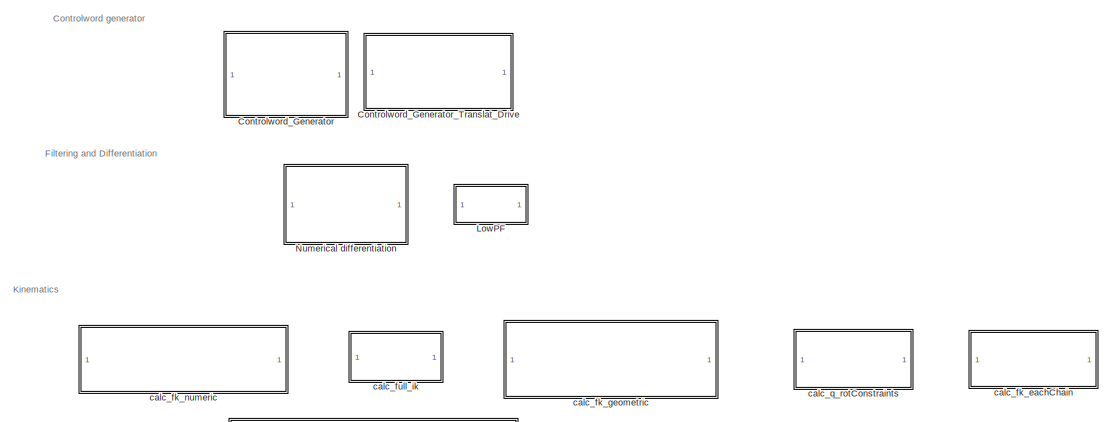
[diagram: root canvas - part 1/5, top left region]
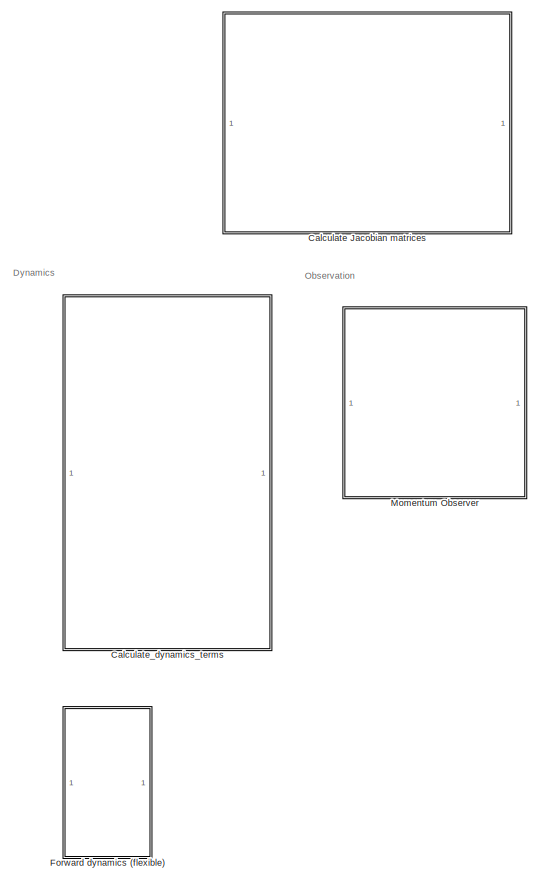
[diagram: root canvas - part 2/5, middle left region]
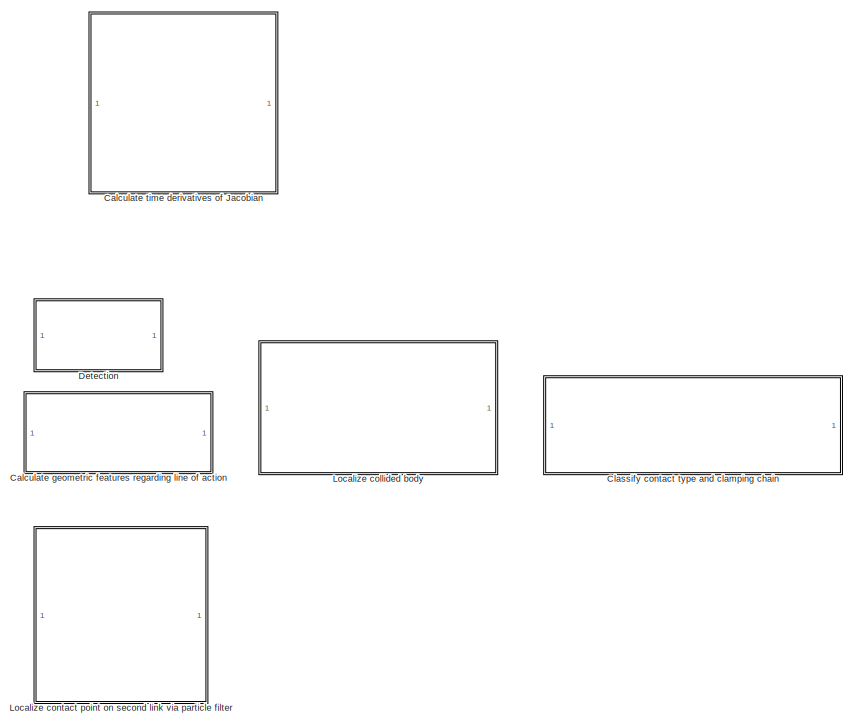
[diagram: root canvas - part 3/5, top center region]
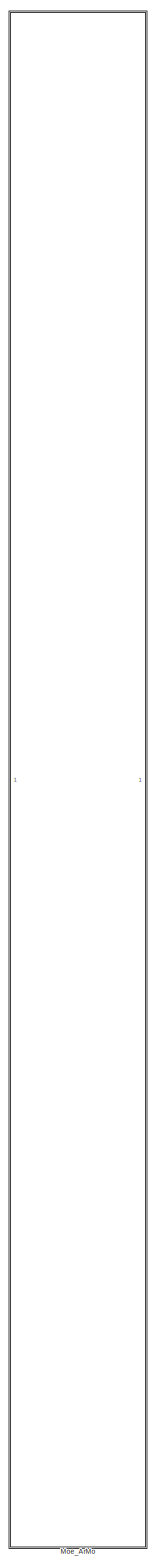
[diagram: root canvas - part 4/5, right side, full height]
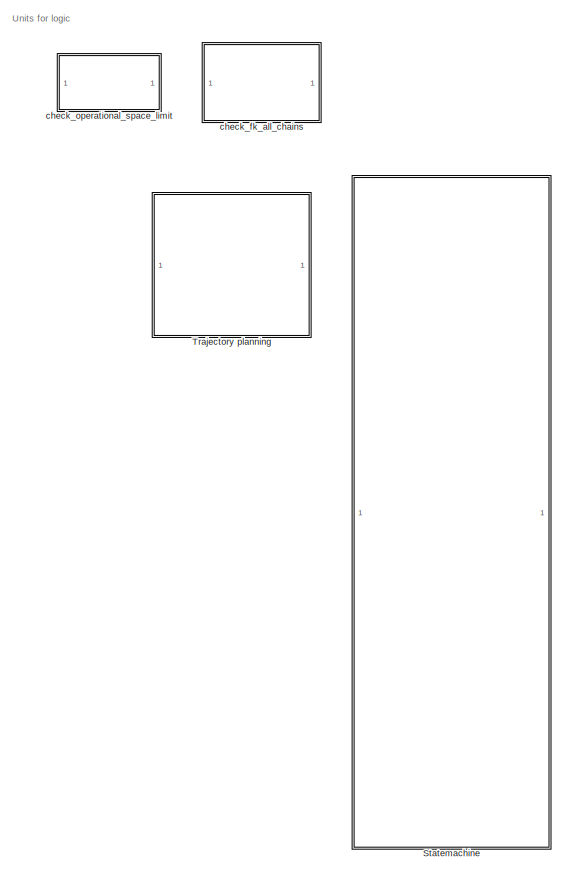
[diagram: root canvas - part 5/5, bottom left region]
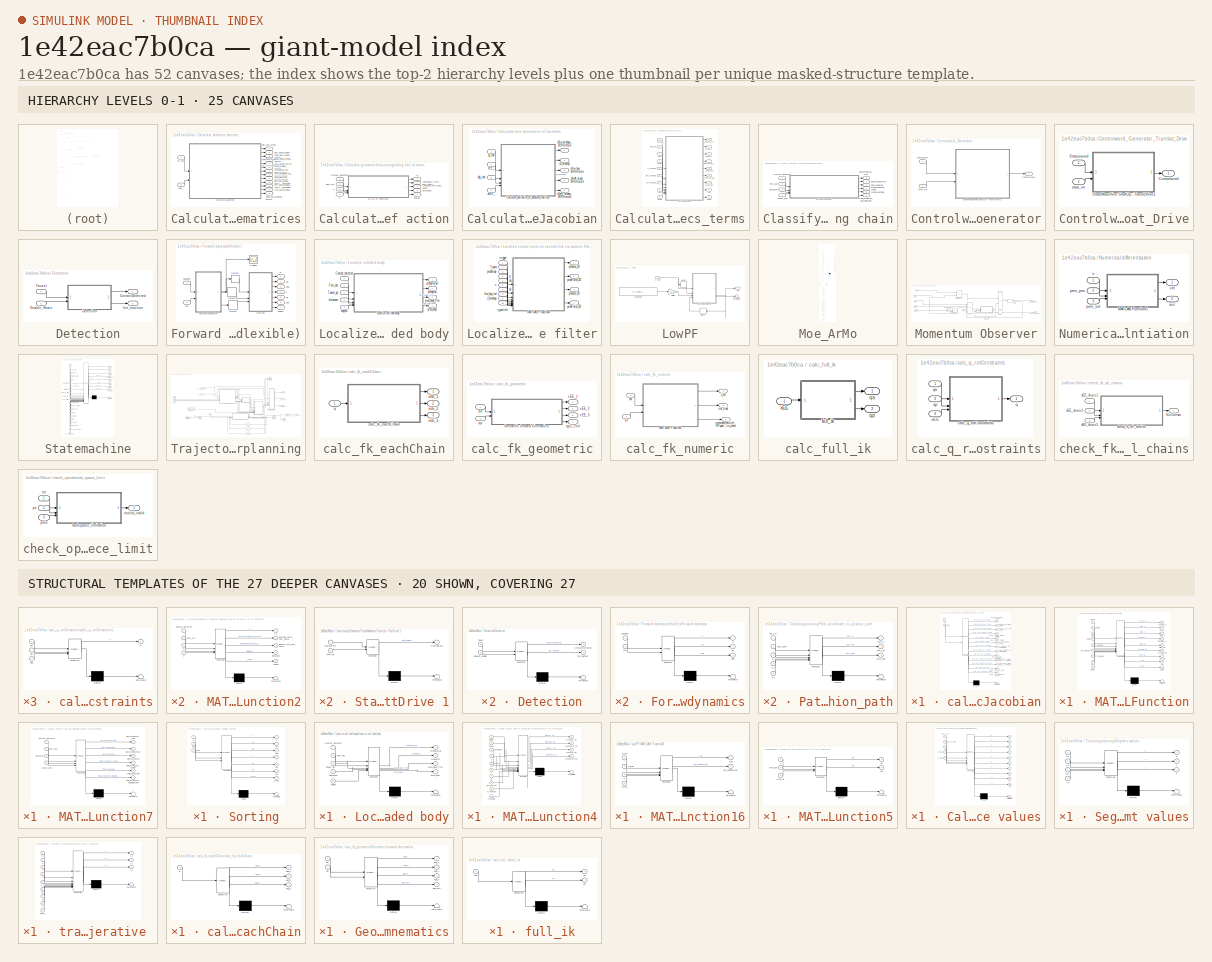
[diagram: thumbnail index - top-2 hierarchy levels (25 canvases) + 20 structural-template representatives of the remaining 27 canvases]
MODEL slx_1e42eac7b0ca
KIND library
CONFIG AbsTol = auto
CONFIG EnableMultiTasking = off
CONFIG FixedStep = auto
CONFIG MaxStep = auto
CONFIG MinStep = auto
CONFIG RelTol = 1e-3
CONFIG SampleTimeConstraint = Unconstrained
CONFIG SolverName = VariableStepAuto
CONFIG StartTime = 0.0
CONFIG StopTime = 10.0
BLOCK [SubSystem] Calculate Jacobian matrices
BLOCK [Outport] Calculate Jacobian matrices/J_hredxqa_ind_3RRRreturn
  Port = 7
BLOCK [Outport] Calculate Jacobian matrices/JacA_hredx_3RRR
  Port = 5
BLOCK [Outport] Calculate Jacobian matrices/JacB_hredqa_3RRR
  Port = 6
BLOCK [Outport] Calculate Jacobian matrices/Jinv_hqx_dq_dqa
  Port = 12
BLOCK [Outport] Calculate Jacobian matrices/Jinv_hqx_ind_3RRRreturn
  Port = 9
BLOCK [Outport] Calculate Jacobian matrices/Jinv_hredqax_ind_3RRRreturn
  Port = 8
BLOCK [SubSystem] Calculate Jacobian matrices/calculate_Jacobian
  ErrorFcn = Stateflow.Translate.translate
  PermitHierarchicalResolution = ExplicitOnly
  SFBlockType = MATLAB Function
  TreatAsAtomicUnit = on
BLOCK [Demux] Calculate Jacobian matrices/calculate_Jacobian/ Demux 
  Outputs = 1
BLOCK [S-Function] Calculate Jacobian matrices/calculate_Jacobian/ SFunction 
  EnableBusSupport = on
  FunctionName = sf_sfun
  Parameters = beta_j,l_all_id,psi_j,r_fixPlat_j,r_mobPlat_j
  PortCounts = [2 14]
  SFcnIsStateOwnerBlock = off
  SFunctionDeploymentMode = off
  Tag = Stateflow S-Function 75
BLOCK [Terminator] Calculate Jacobian matrices/calculate_Jacobian/ Terminator 
BLOCK [Outport] Calculate Jacobian matrices/calculate_Jacobian/J_hredxqa_ind_3RRRreturn
  Port = 7
BLOCK [Outport] Calculate Jacobian matrices/calculate_Jacobian/JacA_hredx_3RRR
  Port = 5
BLOCK [Outport] Calculate Jacobian matrices/calculate_Jacobian/JacB_hredqa_3RRR
  Port = 6
BLOCK [Outport] Calculate Jacobian matrices/calculate_Jacobian/Jinv_hqx_dq_dqa
  Port = 12
BLOCK [Outport] Calculate Jacobian matrices/calculate_Jacobian/Jinv_hqx_ind_3RRRreturn
  Port = 9
BLOCK [Outport] Calculate Jacobian matrices/calculate_Jacobian/Jinv_hredqax_ind_3RRRreturn
  Port = 8
BLOCK [Outport] Calculate Jacobian matrices/calculate_Jacobian/cond_JacA_hredx_3RRR
  Port = 3
BLOCK [Outport] Calculate Jacobian matrices/calculate_Jacobian/cond_JacB_hredqa_3RRR
  Port = 4
BLOCK [Outport] Calculate Jacobian matrices/calculate_Jacobian/cond_Jac_hredxqa_3RRR
  Port = 13
BLOCK [Outport] Calculate Jacobian matrices/calculate_Jacobian/det_JacA_hredx_3RRR
BLOCK [Outport] Calculate Jacobian matrices/calculate_Jacobian/det_JacA_hredx_ind_3RRRreturn_homogen
  Port = 10
BLOCK [Outport] Calculate Jacobian matrices/calculate_Jacobian/det_JacB_hredqa_3RRR
  Port = 2
BLOCK [Outport] Calculate Jacobian matrices/calculate_Jacobian/det_JacB_hredqa_ind_3RRRreturn_homogen
  Port = 11
BLOCK [Inport] Calculate Jacobian matrices/calculate_Jacobian/qj_rad
BLOCK [Inport] Calculate Jacobian matrices/calculate_Jacobian/xEE_
  Port = 2
BLOCK [Outport] Calculate Jacobian matrices/cond_JacA_hredx_3RRR
  Port = 3
BLOCK [Outport] Calculate Jacobian matrices/cond_JacB_hredqa_3RRR
  Port = 4
BLOCK [Outport] Calculate Jacobian matrices/cond_Jac_hredxqa_3RRR
  Port = 13
BLOCK [Outport] Calculate Jacobian matrices/det_JacA_hredx
BLOCK [Outport] Calculate Jacobian matrices/det_JacA_hredx_ind_3RRRreturn_homogen
  Port = 10
BLOCK [Outport] Calculate Jacobian matrices/det_JacB_hredqa
  Port = 2
BLOCK [Outport] Calculate Jacobian matrices/det_JacB_hredqa_ind_3RRRreturn_homogen
  Port = 11
BLOCK [Inport] Calculate Jacobian matrices/qj_rad
BLOCK [Inport] Calculate Jacobian matrices/xEE_
  Port = 2
BLOCK [SubSystem] Calculate geometric features regarding line of action
BLOCK [Inport] Calculate geometric features regarding line of action/Contact_detected
BLOCK [Inport] Calculate geometric features regarding line of action/Fext_mP
  Port = 2
BLOCK [SubSystem] Calculate geometric features regarding line of action/MATLAB Function2
  ErrorFcn = Stateflow.Translate.translate
  PermitHierarchicalResolution = ExplicitOnly
  SFBlockType = MATLAB Function
  TreatAsAtomicUnit = on
BLOCK [Demux] Calculate geometric features regarding line of action/MATLAB Function2/ Demux 
  Outputs = 1
BLOCK [S-Function] Calculate geometric features regarding line of action/MATLAB Function2/ SFunction 
  EnableBusSupport = on
  FunctionName = sf_sfun
  Parameters = l_all_id,psi_j,r_fixPlat_j
  PortCounts = [4 6]
  SFcnIsStateOwnerBlock = off
  SFunctionDeploymentMode = off
  Tag = Stateflow S-Function 5
BLOCK [Terminator] Calculate geometric features regarding line of action/MATLAB Function2/ Terminator 
BLOCK [Inport] Calculate geometric features regarding line of action/MATLAB Function2/Contact_detected
BLOCK [Inport] Calculate geometric features regarding line of action/MATLAB Function2/Fext_mP
  Port = 2
BLOCK [Outport] Calculate geometric features regarding line of action/MATLAB Function2/angles
  Port = 5
BLOCK [Outport] Calculate geometric features regarding line of action/MATLAB Function2/distances
  Port = 4
BLOCK [Outport] Calculate geometric features regarding line of action/MATLAB Function2/leverage_KSMP_Fext_coord
  Port = 2
BLOCK [Outport] Calculate geometric features regarding line of action/MATLAB Function2/lineofact_MP_Fext_coord
  Port = 3
BLOCK [Inport] Calculate geometric features regarding line of action/MATLAB Function2/q
  Port = 4
BLOCK [Outport] Calculate geometric features regarding line of action/MATLAB Function2/u_i
BLOCK [Inport] Calculate geometric features regarding line of action/MATLAB Function2/x
  Port = 3
BLOCK [Outport] Calculate geometric features regarding line of action/angles
  Port = 5
BLOCK [Outport] Calculate geometric features regarding line of action/distances
  Port = 4
BLOCK [Outport] Calculate geometric features regarding line of action/leverage_KSMP_Fext_coord
  Port = 2
BLOCK [Outport] Calculate geometric features regarding line of action/lineofact_MP_Fext_coord
  Port = 3
BLOCK [Inport] Calculate geometric features regarding line of action/q
  Port = 4
BLOCK [Outport] Calculate geometric features regarding line of action/u_i
BLOCK [Inport] Calculate geometric features regarding line of action/x
  Port = 3
BLOCK [SubSystem] Calculate time derivatives of Jacobian
BLOCK [SubSystem] Calculate time derivatives of Jacobian/Calculate_derivative_of_Jacobian_matrices
  ErrorFcn = Stateflow.Translate.translate
  PermitHierarchicalResolution = ExplicitOnly
  SFBlockType = MATLAB Function
  TreatAsAtomicUnit = on
BLOCK [Demux] Calculate time derivatives of Jacobian/Calculate_derivative_of_Jacobian_matrices/ Demux 
  Outputs = 1
BLOCK [S-Function] Calculate time derivatives of Jacobian/Calculate_derivative_of_Jacobian_matrices/ SFunction 
  EnableBusSupport = on
  FunctionName = sf_sfun
  Parameters = l_all,r_BasisPla_MobPla
  PortCounts = [4 6]
  SFcnIsStateOwnerBlock = off
  SFunctionDeploymentMode = off
  Tag = Stateflow S-Function 70
BLOCK [Terminator] Calculate time derivatives of Jacobian/Calculate_derivative_of_Jacobian_matrices/ Terminator 
BLOCK [Outport] Calculate time derivatives of Jacobian/Calculate_derivative_of_Jacobian_matrices/dJ_hredxqa_3RRRreturn
  Port = 2
BLOCK [Outport] Calculate time derivatives of Jacobian/Calculate_derivative_of_Jacobian_matrices/dJacA_hredx_3RRRreturn
  Port = 4
BLOCK [Outport] Calculate time derivatives of Jacobian/Calculate_derivative_of_Jacobian_matrices/dJacB_hredqa_3RRRreturn
  Port = 5
BLOCK [Outport] Calculate time derivatives of Jacobian/Calculate_derivative_of_Jacobian_matrices/dJinv_hqx_3RRRreturn
  Port = 3
BLOCK [Outport] Calculate time derivatives of Jacobian/Calculate_derivative_of_Jacobian_matrices/dJinv_hredqax_3RRRreturn
BLOCK [Inport] Calculate time derivatives of Jacobian/Calculate_derivative_of_Jacobian_matrices/dqj_rad
  Port = 3
BLOCK [Inport] Calculate time derivatives of Jacobian/Calculate_derivative_of_Jacobian_matrices/dxEE_
  Port = 4
BLOCK [Inport] Calculate time derivatives of Jacobian/Calculate_derivative_of_Jacobian_matrices/qj_rad
BLOCK [Inport] Calculate time derivatives of Jacobian/Calculate_derivative_of_Jacobian_matrices/xEE_
  Port = 2
BLOCK [Outport] Calculate time derivatives of Jacobian/dJ_hredxqa
  Port = 2
BLOCK [Outport] Calculate time derivatives of Jacobian/dJacA_hredx_3RRRreturn
  Port = 4
BLOCK [Outport] Calculate time derivatives of Jacobian/dJacB_hredqa_3RRRreturn
  Port = 5
BLOCK [Outport] Calculate time derivatives of Jacobian/dJinv_hqx_3RRRreturn
  Port = 3
BLOCK [Outport] Calculate time derivatives of Jacobian/dJinv_hredqax_3RRRreturn
BLOCK [Inport] Calculate time derivatives of Jacobian/dqj_rad
  Port = 3
BLOCK [Inport] Calculate time derivatives of Jacobian/dxEE_
  Port = 4
BLOCK [Inport] Calculate time derivatives of Jacobian/qj_rad
BLOCK [Inport] Calculate time derivatives of Jacobian/xEE_
  Port = 2
BLOCK [SubSystem] Calculate_dynamics_terms
BLOCK [Outport] Calculate_dynamics_terms/Cred_Qa
  Port = 7
BLOCK [Outport] Calculate_dynamics_terms/Cred_X
  Port = 2
BLOCK [Inport] Calculate_dynamics_terms/Fext
  Port = 8
BLOCK [Inport] Calculate_dynamics_terms/J_hredxqa
  Port = 5
BLOCK [Inport] Calculate_dynamics_terms/Jinv_hredqax
  Port = 6
BLOCK [SubSystem] Calculate_dynamics_terms/MATLAB Function
  ErrorFcn = Stateflow.Translate.translate
  PermitHierarchicalResolution = ExplicitOnly
  SFBlockType = MATLAB Function
  TreatAsAtomicUnit = on
BLOCK [Demux] Calculate_dynamics_terms/MATLAB Function/ Demux 
  Outputs = 1
BLOCK [S-Function] Calculate_dynamics_terms/MATLAB Function/ SFunction 
  EnableBusSupport = on
  FunctionName = sf_sfun
  Parameters = MDP,l_all,r_BasisPla_MobPla
  PortCounts = [9 10]
  SFcnIsStateOwnerBlock = off
  SFunctionDeploymentMode = off
  Tag = Stateflow S-Function 123
BLOCK [Terminator] Calculate_dynamics_terms/MATLAB Function/ Terminator 
BLOCK [Outport] Calculate_dynamics_terms/MATLAB Function/Cred_Qa
  Port = 7
BLOCK [Outport] Calculate_dynamics_terms/MATLAB Function/Cred_X
  Port = 2
BLOCK [Inport] Calculate_dynamics_terms/MATLAB Function/Fext
  Port = 8
BLOCK [Inport] Calculate_dynamics_terms/MATLAB Function/J_hredxqa
  Port = 5
BLOCK [Inport] Calculate_dynamics_terms/MATLAB Function/Jinv_hredqax
  Port = 6
BLOCK [Outport] Calculate_dynamics_terms/MATLAB Function/Mred_Qa
  Port = 5
BLOCK [Outport] Calculate_dynamics_terms/MATLAB Function/Mred_X
  Port = 3
BLOCK [Outport] Calculate_dynamics_terms/MATLAB Function/cvecred_Qa
  Port = 6
BLOCK [Outport] Calculate_dynamics_terms/MATLAB Function/cvecred_X
BLOCK [Inport] Calculate_dynamics_terms/MATLAB Function/dJ_hredxqa
  Port = 7
BLOCK [Outport] Calculate_dynamics_terms/MATLAB Function/ddqa
  Port = 9
BLOCK [Outport] Calculate_dynamics_terms/MATLAB Function/ddx
  Port = 8
BLOCK [Inport] Calculate_dynamics_terms/MATLAB Function/dqj_rad
  Port = 2
BLOCK [Inport] Calculate_dynamics_terms/MATLAB Function/dxEE
  Port = 4
BLOCK [Inport] Calculate_dynamics_terms/MATLAB Function/qj_rad
BLOCK [Outport] Calculate_dynamics_terms/MATLAB Function/tauFrared_X
  Port = 4
BLOCK [Inport] Calculate_dynamics_terms/MATLAB Function/tauQa
  Port = 9
BLOCK [Inport] Calculate_dynamics_terms/MATLAB Function/xEE
  Port = 3
BLOCK [Outport] Calculate_dynamics_terms/Mred_Qa
  Port = 5
BLOCK [Outport] Calculate_dynamics_terms/Mred_X
  Port = 3
BLOCK [Outport] Calculate_dynamics_terms/cvecred_Qa
  Port = 6
BLOCK [Outport] Calculate_dynamics_terms/cvecred_X
BLOCK [Inport] Calculate_dynamics_terms/dJ_hredxqa
  Port = 7
BLOCK [Outport] Calculate_dynamics_terms/ddqa
  Port = 9
BLOCK [Outport] Calculate_dynamics_terms/ddx
  Port = 8
BLOCK [Inport] Calculate_dynamics_terms/dqj_rad
  Port = 2
BLOCK [Inport] Calculate_dynamics_terms/dxEE
  Port = 4
BLOCK [Inport] Calculate_dynamics_terms/qj_rad
BLOCK [Outport] Calculate_dynamics_terms/tauFrared_X
  Port = 4
BLOCK [Inport] Calculate_dynamics_terms/tauQa
  Port = 9
BLOCK [Inport] Calculate_dynamics_terms/xEE
  Port = 3
BLOCK [SubSystem] Classify contact type and clamping chain
BLOCK [Inport] Classify contact type and clamping chain/Contact_detected
BLOCK [Inport] Classify contact type and clamping chain/Fext_obs
  Port = 2
BLOCK [SubSystem] Classify contact type and clamping chain/MATLAB Function7
  ErrorFcn = Stateflow.Translate.translate
  PermitHierarchicalResolution = ExplicitOnly
  SFBlockType = MATLAB Function
  TreatAsAtomicUnit = on
BLOCK [Demux] Classify contact type and clamping chain/MATLAB Function7/ Demux 
  Outputs = 1
BLOCK [S-Function] Classify contact type and clamping chain/MATLAB Function7/ SFunction 
  EnableBusSupport = on
  FunctionName = sf_sfun
  Parameters = ffnn_clamping_chain_param,ffnn_clamping_param
  PortCounts = [4 7]
  SFcnIsStateOwnerBlock = off
  SFunctionDeploymentMode = off
  Tag = Stateflow S-Function 186
BLOCK [Terminator] Classify contact type and clamping chain/MATLAB Function7/ Terminator 
BLOCK [Inport] Classify contact type and clamping chain/MATLAB Function7/Contact_detected
BLOCK [Inport] Classify contact type and clamping chain/MATLAB Function7/Fext_obs
  Port = 2
BLOCK [Outport] Classify contact type and clamping chain/MATLAB Function7/bincl_predcontact
  Port = 2
BLOCK [Outport] Classify contact type and clamping chain/MATLAB Function7/bincl_predprob
  Port = 3
BLOCK [Outport] Classify contact type and clamping chain/MATLAB Function7/bincl_predprob_max
BLOCK [Inport] Classify contact type and clamping chain/MATLAB Function7/distances
  Port = 3
BLOCK [Outport] Classify contact type and clamping chain/MATLAB Function7/mulcl_predchain
  Port = 5
BLOCK [Outport] Classify contact type and clamping chain/MATLAB Function7/mulcl_predprob_chains
  Port = 4
BLOCK [Outport] Classify contact type and clamping chain/MATLAB Function7/mulcl_predprob_clampingchain
  Port = 6
BLOCK [Inport] Classify contact type and clamping chain/MATLAB Function7/tauext_obs
  Port = 4
BLOCK [Outport] Classify contact type and clamping chain/bincl_predcontact
  Port = 2
BLOCK [Outport] Classify contact type and clamping chain/bincl_predprob
  Port = 3
BLOCK [Outport] Classify contact type and clamping chain/bincl_predprob_max
BLOCK [Inport] Classify contact type and clamping chain/distances
  Port = 3
BLOCK [Outport] Classify contact type and clamping chain/mulcl_predchain
  Port = 5
BLOCK [Outport] Classify contact type and clamping chain/mulcl_predprob_chains
  Port = 4
BLOCK [Outport] Classify contact type and clamping chain/mulcl_predprob_clampingchain
  Port = 6
BLOCK [Inport] Classify contact type and clamping chain/tauext_obs
  Port = 4
BLOCK [SubSystem] Controlword_Generator
BLOCK [Outport] Controlword_Generator/Controlword
BLOCK [SubSystem] Controlword_Generator/StateMaschine StartUp - RotDrive 1
  ErrorFcn = Stateflow.Translate.translate
  PermitHierarchicalResolution = ExplicitOnly
  SFBlockType = Chart
  TreatAsAtomicUnit = on
BLOCK [Demux] Controlword_Generator/StateMaschine StartUp - RotDrive 1/ Demux 
  Outputs = 1
BLOCK [S-Function] Controlword_Generator/StateMaschine StartUp - RotDrive 1/ SFunction 
  EnableBusSupport = off
  FunctionName = sf_sfun
  PortCounts = [2 2]
  SFcnIsStateOwnerBlock = off
  SFunctionDeploymentMode = off
  Tag = Stateflow S-Function 15
BLOCK [Terminator] Controlword_Generator/StateMaschine StartUp - RotDrive 1/ Terminator 
BLOCK [Outport] Controlword_Generator/StateMaschine StartUp - RotDrive 1/Controlword
  VectorParamsAs1DForOutWhenUnconnected = off
BLOCK [Inport] Controlword_Generator/StateMaschine StartUp - RotDrive 1/Statusword
BLOCK [Inport] Controlword_Generator/StateMaschine StartUp - RotDrive 1/start_int
  Port = 2
BLOCK [Inport] Controlword_Generator/Statusword
BLOCK [Inport] Controlword_Generator/start_int
  Port = 2
BLOCK [SubSystem] Controlword_Generator_Translat_Drive
BLOCK [Outport] Controlword_Generator_Translat_Drive/Controlword
BLOCK [SubSystem] Controlword_Generator_Translat_Drive/StateMaschine StartUp - TranslDrive1
  ErrorFcn = Stateflow.Translate.translate
  PermitHierarchicalResolution = ExplicitOnly
  SFBlockType = Chart
  TreatAsAtomicUnit = on
BLOCK [Demux] Controlword_Generator_Translat_Drive/StateMaschine StartUp - TranslDrive1/ Demux 
  Outputs = 1
BLOCK [S-Function] Controlword_Generator_Translat_Drive/StateMaschine StartUp - TranslDrive1/ SFunction 
  EnableBusSupport = on
  FunctionName = sf_sfun
  PortCounts = [2 2]
  SFcnIsStateOwnerBlock = off
  SFunctionDeploymentMode = off
  Tag = Stateflow S-Function 52
BLOCK [Terminator] Controlword_Generator_Translat_Drive/StateMaschine StartUp - TranslDrive1/ Terminator 
BLOCK [Outport] Controlword_Generator_Translat_Drive/StateMaschine StartUp - TranslDrive1/Controlword
  VectorParamsAs1DForOutWhenUnconnected = off
BLOCK [Inport] Controlword_Generator_Translat_Drive/StateMaschine StartUp - TranslDrive1/Statusword
BLOCK [Inport] Controlword_Generator_Translat_Drive/StateMaschine StartUp - TranslDrive1/start_int
  Port = 2
BLOCK [Inport] Controlword_Generator_Translat_Drive/Statusword
BLOCK [Inport] Controlword_Generator_Translat_Drive/start_int
  Port = 2
BLOCK [SubSystem] Detection
BLOCK [Outport] Detection/ContactDetected
BLOCK [SubSystem] Detection/Detection
  ErrorFcn = Stateflow.Translate.translate
  PermitHierarchicalResolution = ExplicitOnly
  SFBlockType = MATLAB Function
  TreatAsAtomicUnit = on
BLOCK [Demux] Detection/Detection/ Demux 
  Outputs = 1
BLOCK [S-Function] Detection/Detection/ SFunction 
  EnableBusSupport = on
  FunctionName = sf_sfun
  Parameters = ColDet_thresholds
  PortCounts = [2 3]
  SFcnIsStateOwnerBlock = off
  SFunctionDeploymentMode = off
  Tag = Stateflow S-Function 10
BLOCK [Terminator] Detection/Detection/ Terminator 
BLOCK [Outport] Detection/Detection/ContactDetected
  VectorParamsAs1DForOutWhenUnconnected = off
BLOCK [Inport] Detection/Detection/Tauext
BLOCK [Inport] Detection/Detection/collreact_enable
  Port = 2
BLOCK [Outport] Detection/Detection/init_reaction
  Port = 2
BLOCK [Inport] Detection/Enable_React
  Port = 2
BLOCK [Outport] Detection/Init_reaction
  Port = 2
BLOCK [Inport] Detection/Tauext
BLOCK [SubSystem] Forward dynamics (flexible)
BLOCK [Delay] Forward dynamics (flexible)/Delay3
  DelayLength = 1
  InitialCondition = 0
  InputPortMap = u0
BLOCK [Delay] Forward dynamics (flexible)/Delay4
  DelayLength = 1
  InputPortMap = u0
BLOCK [Delay] Forward dynamics (flexible)/Delay5
  DelayLength = 1
  InputPortMap = u0
BLOCK [SubSystem] Forward dynamics (flexible)/Forward dynamics
  ErrorFcn = Stateflow.Translate.translate
  PermitHierarchicalResolution = ExplicitOnly
  SFBlockType = MATLAB Function
  TreatAsAtomicUnit = on
BLOCK [Demux] Forward dynamics (flexible)/Forward dynamics/ Demux 
  Outputs = 1
BLOCK [S-Function] Forward dynamics (flexible)/Forward dynamics/ SFunction 
  EnableBusSupport = on
  FunctionName = sf_sfun
  Parameters = capsule_active,t_sample
  PortCounts = [2 4]
  SFcnIsStateOwnerBlock = off
  SFunctionDeploymentMode = off
  Tag = Stateflow S-Function 39
BLOCK [Terminator] Forward dynamics (flexible)/Forward dynamics/ Terminator 
BLOCK [Inport] Forward dynamics (flexible)/Forward dynamics/capspos
BLOCK [Outport] Forward dynamics (flexible)/Forward dynamics/q
BLOCK [Outport] Forward dynamics (flexible)/Forward dynamics/qd
  Port = 2
BLOCK [Outport] Forward dynamics (flexible)/Forward dynamics/qdd
  Port = 3
BLOCK [Inport] Forward dynamics (flexible)/Forward dynamics/tau
  Port = 2
BLOCK [Scope] Forward dynamics (flexible)/Scope3
  Floating = off
  NumInputPorts = 1
  ScopeSpecificationString = Simulink.scopes.TimeScopeBlockCfg('CurrentConfiguration', extmgr.ConfigurationSet(extmgr.Configuration('Core','General UI',true),extmgr.Configuration('Core','Source UI',true),extmgr.Configuration('Sources','WiredSimulink',true),extmgr.Configuration('Visuals','Time Domain',true,'SerializedDisplays',{struct('MinYLimReal','-0.00629','MaxYLimReal','0.00415','YLabelReal','','MinYLimMag','0.00000','MaxY...<+2137ch>
BLOCK [SubSystem] Forward dynamics (flexible)/Sorting
  ErrorFcn = Stateflow.Translate.translate
  PermitHierarchicalResolution = ExplicitOnly
  SFBlockType = MATLAB Function
  TreatAsAtomicUnit = on
BLOCK [Demux] Forward dynamics (flexible)/Sorting/ Demux 
  Outputs = 1
BLOCK [S-Function] Forward dynamics (flexible)/Sorting/ SFunction 
  EnableBusSupport = on
  FunctionName = sf_sfun
  Parameters = capsule_active
  PortCounts = [3 8]
  SFcnIsStateOwnerBlock = off
  SFunctionDeploymentMode = off
  Tag = Stateflow S-Function 9
BLOCK [Terminator] Forward dynamics (flexible)/Sorting/ Terminator 
BLOCK [Outport] Forward dynamics (flexible)/Sorting/ddq
  Port = 3
BLOCK [Inport] Forward dynamics (flexible)/Sorting/ddq_
  Port = 3
BLOCK [Outport] Forward dynamics (flexible)/Sorting/ddx
  Port = 6
BLOCK [Outport] Forward dynamics (flexible)/Sorting/dq
  Port = 2
BLOCK [Inport] Forward dynamics (flexible)/Sorting/dq_
  Port = 2
BLOCK [Outport] Forward dynamics (flexible)/Sorting/dx
  Port = 5
BLOCK [Outport] Forward dynamics (flexible)/Sorting/q
BLOCK [Inport] Forward dynamics (flexible)/Sorting/q_
BLOCK [Outport] Forward dynamics (flexible)/Sorting/qcaps
  Port = 7
BLOCK [Outport] Forward dynamics (flexible)/Sorting/x
  Port = 4
BLOCK [Inport] Forward dynamics (flexible)/capspos
BLOCK [Outport] Forward dynamics (flexible)/ddq
  Port = 3
BLOCK [Outport] Forward dynamics (flexible)/ddx
  Port = 6
BLOCK [Outport] Forward dynamics (flexible)/dq
  Port = 2
BLOCK [Outport] Forward dynamics (flexible)/dx
  Port = 5
BLOCK [Outport] Forward dynamics (flexible)/q
BLOCK [Outport] Forward dynamics (flexible)/qcaps
  Port = 7
BLOCK [Inport] Forward dynamics (flexible)/tau
  Port = 2
BLOCK [Outport] Forward dynamics (flexible)/x
  Port = 4
BLOCK [SubSystem] Localize collided body
BLOCK [Inport] Localize collided body/Contact_detected
BLOCK [Inport] Localize collided body/Fext_obs
  Port = 2
BLOCK [SubSystem] Localize collided body/Localize collided body
  ErrorFcn = Stateflow.Translate.translate
  PermitHierarchicalResolution = ExplicitOnly
  SFBlockType = MATLAB Function
  TreatAsAtomicUnit = on
BLOCK [Demux] Localize collided body/Localize collided body/ Demux 
  Outputs = 1
BLOCK [S-Function] Localize collided body/Localize collided body/ SFunction 
  EnableBusSupport = on
  FunctionName = sf_sfun
  Parameters = ffnn_ClCollB_param,min_angle_threshold_deg,min_dist_threshold,min_torque_threshold
  PortCounts = [5 5]
  SFcnIsStateOwnerBlock = off
  SFunctionDeploymentMode = off
  Tag = Stateflow S-Function 113
BLOCK [Terminator] Localize collided body/Localize collided body/ Terminator 
BLOCK [Inport] Localize collided body/Localize collided body/Contact_detected
BLOCK [Inport] Localize collided body/Localize collided body/Fext_obs
  Port = 2
BLOCK [Inport] Localize collided body/Localize collided body/Tauext_qa
  Port = 3
BLOCK [Inport] Localize collided body/Localize collided body/angles
  Port = 5
BLOCK [Inport] Localize collided body/Localize collided body/distances
  Port = 4
BLOCK [Outport] Localize collided body/Localize collided body/pred_body
  Port = 4
BLOCK [Outport] Localize collided body/Localize collided body/pred_body_ffnn
  Port = 3
BLOCK [Outport] Localize collided body/Localize collided body/predprob
  Port = 2
BLOCK [Outport] Localize collided body/Localize collided body/predprob_all
BLOCK [Inport] Localize collided body/Tauext_qa
  Port = 3
BLOCK [Inport] Localize collided body/angles
  Port = 5
BLOCK [Inport] Localize collided body/distances
  Port = 4
BLOCK [Outport] Localize collided body/pred_body
  Port = 4
BLOCK [Outport] Localize collided body/pred_body_ffnn
  Port = 3
BLOCK [Outport] Localize collided body/predprob
  Port = 2
BLOCK [Outport] Localize collided body/predprob_all
BLOCK [SubSystem] Localize contact point on second link via particle filter
BLOCK [Inport] Localize contact point on second link via particle filter/J_hredxqa
  Port = 9
BLOCK [Inport] Localize contact point on second link via particle filter/Jinv_hqx_ind
  Port = 8
BLOCK [SubSystem] Localize contact point on second link via particle filter/MATLAB Function4
  ErrorFcn = Stateflow.Translate.translate
  PermitHierarchicalResolution = ExplicitOnly
  SFBlockType = MATLAB Function
  TreatAsAtomicUnit = on
BLOCK [Demux] Localize contact point on second link via particle filter/MATLAB Function4/ Demux 
  Outputs = 1
BLOCK [S-Function] Localize contact point on second link via particle filter/MATLAB Function4/ SFunction 
  EnableBusSupport = on
  FunctionName = sf_sfun
  Parameters = l_all,l_all_id,pf_dim,psi_j,r_BasisPla_MobPla,r_fixPlat_j,r_mobPlat_j,x_CovR_Inv_2D,x_CovR_Inv_3D,x_N_2D,x_N_3D
  PortCounts = [10 5]
  SFcnIsStateOwnerBlock = off
  SFunctionDeploymentMode = off
  Tag = Stateflow S-Function 88
BLOCK [Terminator] Localize contact point on second link via particle filter/MATLAB Function4/ Terminator 
BLOCK [Inport] Localize contact point on second link via particle filter/MATLAB Function4/J_hredxqa
  Port = 9
BLOCK [Inport] Localize contact point on second link via particle filter/MATLAB Function4/Jinv_hqx_ind
  Port = 8
BLOCK [Inport] Localize contact point on second link via particle filter/MATLAB Function4/Tauext
  Port = 2
BLOCK [Inport] Localize contact point on second link via particle filter/MATLAB Function4/dq
  Port = 5
BLOCK [Inport] Localize contact point on second link via particle filter/MATLAB Function4/dx
  Port = 7
BLOCK [Inport] Localize contact point on second link via particle filter/MATLAB Function4/n_particle
  Port = 10
BLOCK [Inport] Localize contact point on second link via particle filter/MATLAB Function4/predBody
  Port = 3
BLOCK [Outport] Localize contact point on second link via particle filter/MATLAB Function4/predForce_2D
  Port = 2
BLOCK [Outport] Localize contact point on second link via particle filter/MATLAB Function4/predForce_3D
  Port = 4
BLOCK [Outport] Localize contact point on second link via particle filter/MATLAB Function4/predLoc_2D
BLOCK [Outport] Localize contact point on second link via particle filter/MATLAB Function4/predLoc_3D
  Port = 3
BLOCK [Inport] Localize contact point on second link via particle filter/MATLAB Function4/q
  Port = 4
BLOCK [Inport] Localize contact point on second link via particle filter/MATLAB Function4/trigger
BLOCK [Inport] Localize contact point on second link via particle filter/MATLAB Function4/x
  Port = 6
BLOCK [Inport] Localize contact point on second link via particle filter/Tauext
  Port = 2
BLOCK [Inport] Localize contact point on second link via particle filter/dq
  Port = 5
BLOCK [Inport] Localize contact point on second link via particle filter/dx
  Port = 7
BLOCK [Inport] Localize contact point on second link via particle filter/n_particle
  Port = 10
BLOCK [Inport] Localize contact point on second link via particle filter/predBody
  Port = 3
BLOCK [Outport] Localize contact point on second link via particle filter/predForce_2D
  Port = 2
BLOCK [Outport] Localize contact point on second link via particle filter/predForce_3D
  Port = 4
BLOCK [Outport] Localize contact point on second link via particle filter/predLoc_2D
BLOCK [Outport] Localize contact point on second link via particle filter/predLoc_3D
  Port = 3
BLOCK [Inport] Localize contact point on second link via particle filter/q
  Port = 4
BLOCK [Inport] Localize contact point on second link via particle filter/trigger
BLOCK [Inport] Localize contact point on second link via particle filter/x
  Port = 6
BLOCK [SubSystem] LowPF
BLOCK [Constant] LowPF/Constant16
  SampleTime = -1
  Value = 2/ (2*pi*t_sample)
BLOCK [Delay] LowPF/Delay5
  DelayLength = 1
  InitialCondition = initial_value
  InputPortMap = u0
BLOCK [Delay] LowPF/Delay6
  DelayLength = 1
  InitialCondition = initial_value
  InputPortMap = u0
  NameLocation = top
BLOCK [SubSystem] LowPF/MATLAB Function16
  ErrorFcn = Stateflow.Translate.translate
  PermitHierarchicalResolution = ExplicitOnly
  SFBlockType = MATLAB Function
  TreatAsAtomicUnit = on
BLOCK [Demux] LowPF/MATLAB Function16/ Demux 
  Outputs = 1
BLOCK [S-Function] LowPF/MATLAB Function16/ SFunction 
  EnableBusSupport = on
  FunctionName = sf_sfun
  PortCounts = [4 3]
  SFcnIsStateOwnerBlock = off
  SFunctionDeploymentMode = off
  Tag = Stateflow S-Function 151
BLOCK [Terminator] LowPF/MATLAB Function16/ Terminator 
BLOCK [Inport] LowPF/MATLAB Function16/a
  Port = 3
BLOCK [Outport] LowPF/MATLAB Function16/not_defined_nan
  Port = 2
  VectorParamsAs1DForOutWhenUnconnected = off
BLOCK [Outport] LowPF/MATLAB Function16/u_filt
BLOCK [Inport] LowPF/MATLAB Function16/u_prev
  Port = 2
BLOCK [Inport] LowPF/MATLAB Function16/u_raw
BLOCK [Inport] LowPF/MATLAB Function16/y_prev
  Port = 4
BLOCK [Gain] LowPF/Multiply
  Gain = 1/f_lp
BLOCK [Terminator] LowPF/Terminator
BLOCK [Outport] LowPF/u_filt
BLOCK [Inport] LowPF/u_raw
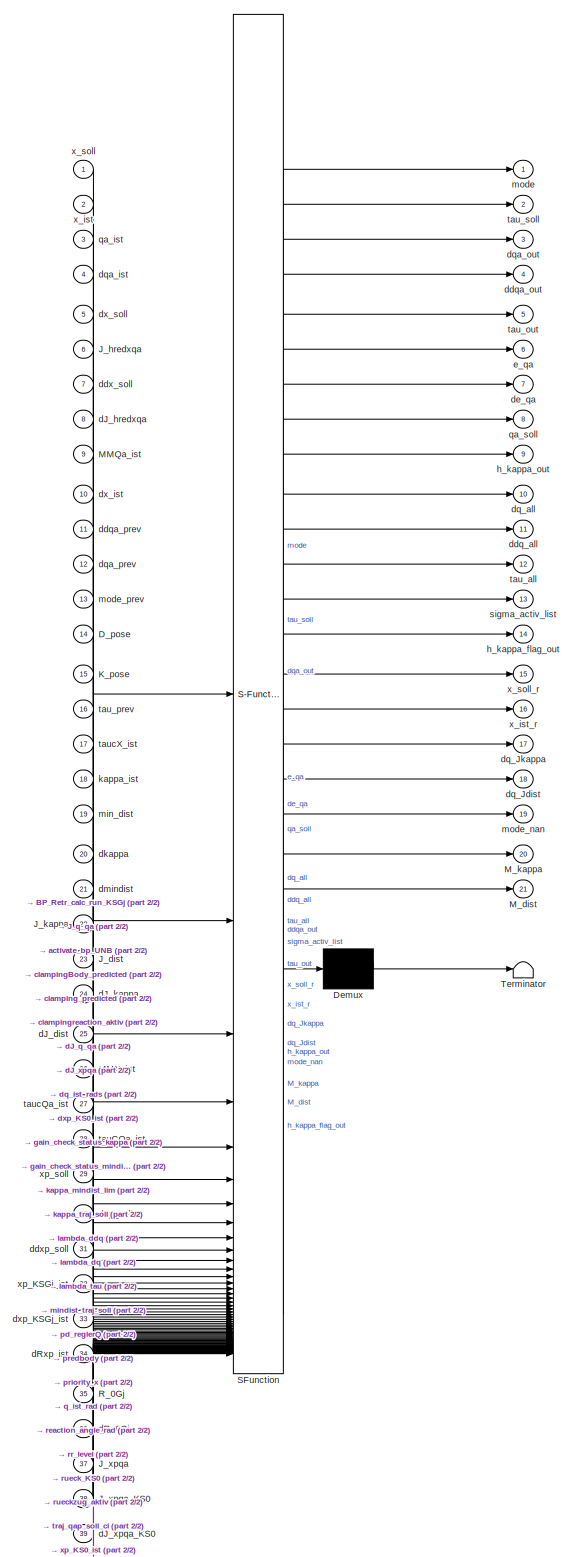
[diagram: Moe_ArMo - part 1/2, full width, top band]
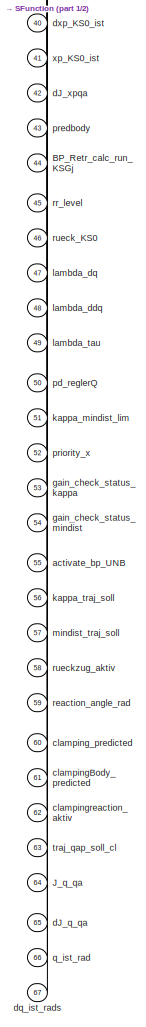
[diagram: Moe_ArMo - part 2/2, bottom left region]
BLOCK [SubSystem] Moe_ArMo
  ErrorFcn = Stateflow.Translate.translate
  PermitHierarchicalResolution = ExplicitOnly
  SFBlockType = MATLAB Function
  TreatAsAtomicUnit = on
BLOCK [Demux] Moe_ArMo/ Demux 
  Outputs = 1
BLOCK [S-Function] Moe_ArMo/ SFunction 
  EnableBusSupport = on
  FunctionName = sf_sfun
  Parameters = param
  PortCounts = [67 22]
  SFcnIsStateOwnerBlock = off
  SFunctionDeploymentMode = off
  Tag = Stateflow S-Function 92
BLOCK [Terminator] Moe_ArMo/ Terminator 
BLOCK [Inport] Moe_ArMo/BP_Retr_calc_run_KSGj
  Port = 44
BLOCK [Inport] Moe_ArMo/D_pose
  Port = 14
BLOCK [Inport] Moe_ArMo/J_dist
  Port = 23
BLOCK [Inport] Moe_ArMo/J_hredxqa
  Port = 6
BLOCK [Inport] Moe_ArMo/J_kappa
  Port = 22
BLOCK [Inport] Moe_ArMo/J_q_qa
  Port = 64
BLOCK [Inport] Moe_ArMo/J_xpqa
  Port = 37
BLOCK [Inport] Moe_ArMo/J_xpqa_KS0
  Port = 38
BLOCK [Inport] Moe_ArMo/K_pose
  Port = 15
BLOCK [Inport] Moe_ArMo/MMQa_ist
  Port = 9
BLOCK [Inport] Moe_ArMo/MMX_ist
  Port = 26
BLOCK [Outport] Moe_ArMo/M_dist
  Port = 21
BLOCK [Outport] Moe_ArMo/M_kappa
  Port = 20
BLOCK [Inport] Moe_ArMo/R_0Gj
  Port = 35
BLOCK [Inport] Moe_ArMo/activate_bp_UNB
  Port = 55
BLOCK [Inport] Moe_ArMo/clampingBody_predicted
  Port = 61
BLOCK [Inport] Moe_ArMo/clamping_predicted
  Port = 60
BLOCK [Inport] Moe_ArMo/clampingreaction_aktiv
  Port = 62
BLOCK [Inport] Moe_ArMo/dJ_dist
  Port = 25
BLOCK [Inport] Moe_ArMo/dJ_hredxqa
  Port = 8
BLOCK [Inport] Moe_ArMo/dJ_kappa
  Port = 24
BLOCK [Inport] Moe_ArMo/dJ_q_qa
  Port = 65
BLOCK [Inport] Moe_ArMo/dJ_xpqa
  Port = 42
BLOCK [Inport] Moe_ArMo/dJ_xpqa_KS0
  Port = 39
BLOCK [Inport] Moe_ArMo/dR_0Gj
  Port = 36
BLOCK [Inport] Moe_ArMo/dRxp_ist
  Port = 34
BLOCK [Outport] Moe_ArMo/ddq_all
  Port = 11
BLOCK [Outport] Moe_ArMo/ddqa_out
  Port = 4
BLOCK [Inport] Moe_ArMo/ddqa_prev
  Port = 11
BLOCK [Inport] Moe_ArMo/ddx_soll
  Port = 7
BLOCK [Inport] Moe_ArMo/ddxp_soll
  Port = 31
BLOCK [Outport] Moe_ArMo/de_qa
  Port = 7
BLOCK [Inport] Moe_ArMo/dkappa
  Port = 20
BLOCK [Inport] Moe_ArMo/dmindist
  Port = 21
BLOCK [Outport] Moe_ArMo/dq_Jdist
  Port = 18
  VectorParamsAs1DForOutWhenUnconnected = off
BLOCK [Outport] Moe_ArMo/dq_Jkappa
  Port = 17
  VectorParamsAs1DForOutWhenUnconnected = off
BLOCK [Outport] Moe_ArMo/dq_all
  Port = 10
BLOCK [Inport] Moe_ArMo/dq_ist_rads
  Port = 67
BLOCK [Inport] Moe_ArMo/dqa_ist
  Port = 4
BLOCK [Outport] Moe_ArMo/dqa_out
  Port = 3
BLOCK [Inport] Moe_ArMo/dqa_prev
  Port = 12
BLOCK [Inport] Moe_ArMo/dx_ist
  Port = 10
BLOCK [Inport] Moe_ArMo/dx_soll
  Port = 5
BLOCK [Inport] Moe_ArMo/dxp_KS0_ist
  Port = 40
BLOCK [Inport] Moe_ArMo/dxp_KSGj_ist
  Port = 33
BLOCK [Inport] Moe_ArMo/dxp_soll
  Port = 30
BLOCK [Outport] Moe_ArMo/e_qa
  Port = 6
BLOCK [Inport] Moe_ArMo/gain_check_status_kappa
  Port = 53
BLOCK [Inport] Moe_ArMo/gain_check_status_mindist
  Port = 54
BLOCK [Outport] Moe_ArMo/h_kappa_flag_out
  Port = 14
BLOCK [Outport] Moe_ArMo/h_kappa_out
  Port = 9
BLOCK [Inport] Moe_ArMo/kappa_ist
  Port = 18
BLOCK [Inport] Moe_ArMo/kappa_mindist_lim
  Port = 51
BLOCK [Inport] Moe_ArMo/kappa_traj_soll
  Port = 56
BLOCK [Inport] Moe_ArMo/lambda_ddq
  Port = 48
BLOCK [Inport] Moe_ArMo/lambda_dq
  Port = 47
BLOCK [Inport] Moe_ArMo/lambda_tau
  Port = 49
BLOCK [Inport] Moe_ArMo/min_dist
  Port = 19
BLOCK [Inport] Moe_ArMo/mindist_traj_soll
  Port = 57
BLOCK [Outport] Moe_ArMo/mode
BLOCK [Outport] Moe_ArMo/mode_nan
  Port = 19
  VectorParamsAs1DForOutWhenUnconnected = off
BLOCK [Inport] Moe_ArMo/mode_prev
  Port = 13
BLOCK [Inport] Moe_ArMo/pd_reglerQ
  Port = 50
BLOCK [Inport] Moe_ArMo/predbody
  Port = 43
BLOCK [Inport] Moe_ArMo/priority_x
  Port = 52
BLOCK [Inport] Moe_ArMo/q_ist_rad
  Port = 66
BLOCK [Inport] Moe_ArMo/qa_ist
  Port = 3
BLOCK [Outport] Moe_ArMo/qa_soll
  Port = 8
BLOCK [Inport] Moe_ArMo/reaction_angle_rad
  Port = 59
BLOCK [Inport] Moe_ArMo/rr_level
  Port = 45
BLOCK [Inport] Moe_ArMo/rueck_KS0
  Port = 46
BLOCK [Inport] Moe_ArMo/rueckzug_aktiv
  Port = 58
BLOCK [Outport] Moe_ArMo/sigma_activ_list
  Port = 13
BLOCK [Inport] Moe_ArMo/tauCQa_ist
  Port = 28
BLOCK [Outport] Moe_ArMo/tau_all
  Port = 12
BLOCK [Outport] Moe_ArMo/tau_out
  Port = 5
BLOCK [Inport] Moe_ArMo/tau_prev
  Port = 16
BLOCK [Outport] Moe_ArMo/tau_soll
  Port = 2
BLOCK [Inport] Moe_ArMo/taucQa_ist
  Port = 27
BLOCK [Inport] Moe_ArMo/taucX_ist
  Port = 17
BLOCK [Inport] Moe_ArMo/traj_qap_soll_cl
  Port = 63
BLOCK [Inport] Moe_ArMo/x_ist
  Port = 2
BLOCK [Outport] Moe_ArMo/x_ist_r
  Port = 16
BLOCK [Inport] Moe_ArMo/x_soll
BLOCK [Outport] Moe_ArMo/x_soll_r
  Port = 15
BLOCK [Inport] Moe_ArMo/xp_KS0_ist
  Port = 41
BLOCK [Inport] Moe_ArMo/xp_KSGj_ist
  Port = 32
BLOCK [Inport] Moe_ArMo/xp_soll
  Port = 29
BLOCK [SubSystem] Momentum Observer
BLOCK [Delay] Momentum Observer/Delay
  DelayLength = 1
  InputPortMap = u0
BLOCK [Delay] Momentum Observer/Delay6
  DelayLength = 1
  InitialCondition = initial_Fext
  InputPortMap = u0
BLOCK [Delay] Momentum Observer/Delay7
  DelayLength = 1
  InitialCondition = initial_Fext
  InputPortMap = u0
BLOCK [Gain] Momentum Observer/Gain
  Gain = Ko
  Multiplication = Matrix(K*u)
BLOCK [Inport] Momentum Observer/M
BLOCK [SubSystem] Momentum Observer/MATLAB Function19
  ErrorFcn = Stateflow.Translate.translate
  PermitHierarchicalResolution = ExplicitOnly
  SFBlockType = MATLAB Function
  TreatAsAtomicUnit = on
BLOCK [Demux] Momentum Observer/MATLAB Function19/ Demux 
  Outputs = 1
BLOCK [S-Function] Momentum Observer/MATLAB Function19/ SFunction 
  EnableBusSupport = on
  FunctionName = sf_sfun
  Parameters = t_sample
  PortCounts = [2 3]
  SFcnIsStateOwnerBlock = off
  SFunctionDeploymentMode = off
  Tag = Stateflow S-Function 69
BLOCK [Terminator] Momentum Observer/MATLAB Function19/ Terminator 
BLOCK [Inport] Momentum Observer/MATLAB Function19/beta
BLOCK [Outport] Momentum Observer/MATLAB Function19/beta_nan
  Port = 2
  VectorParamsAs1DForOutWhenUnconnected = off
BLOCK [Inport] Momentum Observer/MATLAB Function19/beta_old
  Port = 2
BLOCK [Outport] Momentum Observer/MATLAB Function19/y
BLOCK [Product] Momentum Observer/Matrix Multiply20
  Multiplication = Matrix(*)
BLOCK [Product] Momentum Observer/Matrix Multiply23
  Multiplication = Matrix(*)
BLOCK [Sum] Momentum Observer/Sum13
  IconShape = rectangular
  Inputs = |+-+-+
BLOCK [Sum] Momentum Observer/Sum14
  IconShape = rectangular
  Inputs = |+-
BLOCK [Math] Momentum Observer/Transpose19
  Operator = transpose
  SignedPower = on
BLOCK [Inport] Momentum Observer/dq
  Port = 2
BLOCK [Inport] Momentum Observer/g
  Port = 6
BLOCK [Outport] Momentum Observer/obs_beta_nan
  Port = 2
BLOCK [Inport] Momentum Observer/tau
  Port = 3
BLOCK [Inport] Momentum Observer/tauC
  Port = 5
BLOCK [Outport] Momentum Observer/tau_ext_beo
BLOCK [Inport] Momentum Observer/tau_fr
  Port = 4
BLOCK [SubSystem] Numerical differentiation
BLOCK [SubSystem] Numerical differentiation/MATLAB Function5
  ErrorFcn = Stateflow.Translate.translate
  PermitHierarchicalResolution = ExplicitOnly
  SFBlockType = MATLAB Function
  TreatAsAtomicUnit = on
BLOCK [Demux] Numerical differentiation/MATLAB Function5/ Demux 
  Outputs = 1
BLOCK [S-Function] Numerical differentiation/MATLAB Function5/ SFunction 
  EnableBusSupport = on
  FunctionName = sf_sfun
  Parameters = t_sample
  PortCounts = [3 3]
  SFcnIsStateOwnerBlock = off
  SFunctionDeploymentMode = off
  Tag = Stateflow S-Function 42
BLOCK [Terminator] Numerical differentiation/MATLAB Function5/ Terminator 
BLOCK [Outport] Numerical differentiation/MATLAB Function5/acc
  Port = 2
BLOCK [Inport] Numerical differentiation/MATLAB Function5/prev_pos
  Port = 2
BLOCK [Inport] Numerical differentiation/MATLAB Function5/prev_vel
  Port = 3
BLOCK [Inport] Numerical differentiation/MATLAB Function5/u
BLOCK [Outport] Numerical differentiation/MATLAB Function5/vel
  VectorParamsAs1DForOutWhenUnconnected = off
BLOCK [Outport] Numerical differentiation/acc
  Port = 2
BLOCK [Inport] Numerical differentiation/prev_pos
  Port = 2
BLOCK [Inport] Numerical differentiation/prev_vel
  Port = 3
BLOCK [Inport] Numerical differentiation/u
BLOCK [Outport] Numerical differentiation/vel
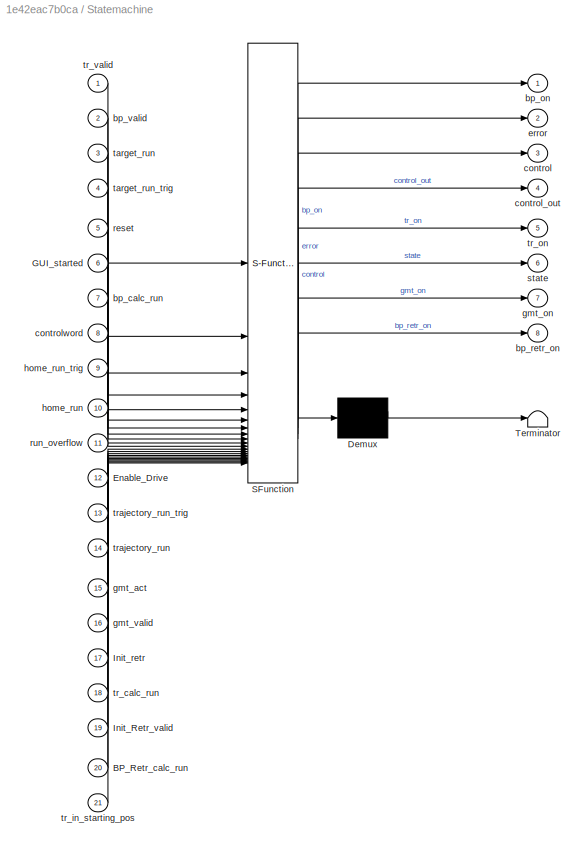
BLOCK [SubSystem] Statemachine
  ErrorFcn = Stateflow.Translate.translate
  PermitHierarchicalResolution = ExplicitOnly
  SFBlockType = Chart
  TreatAsAtomicUnit = on
BLOCK [Demux] Statemachine/ Demux 
  Outputs = 1
BLOCK [S-Function] Statemachine/ SFunction 
  EnableBusSupport = on
  FunctionName = sf_sfun
  PortCounts = [21 9]
  SFcnIsStateOwnerBlock = off
  SFunctionDeploymentMode = off
  Tag = Stateflow S-Function 99
BLOCK [Terminator] Statemachine/ Terminator 
BLOCK [Inport] Statemachine/BP_Retr_calc_run
  Port = 20
BLOCK [Inport] Statemachine/Enable_Drive
  Port = 12
BLOCK [Inport] Statemachine/GUI_started
  Port = 6
BLOCK [Inport] Statemachine/Init_Retr_valid
  Port = 19
BLOCK [Inport] Statemachine/Init_retr
  Port = 17
BLOCK [Inport] Statemachine/bp_calc_run
  Port = 7
BLOCK [Outport] Statemachine/bp_on
  VectorParamsAs1DForOutWhenUnconnected = off
BLOCK [Outport] Statemachine/bp_retr_on
  Port = 8
BLOCK [Inport] Statemachine/bp_valid
  Port = 2
BLOCK [Outport] Statemachine/control
  Port = 3
  VectorParamsAs1DForOutWhenUnconnected = off
BLOCK [Outport] Statemachine/control_out
  Port = 4
BLOCK [Inport] Statemachine/controlword
  Port = 8
BLOCK [Outport] Statemachine/error
  Port = 2
  VectorParamsAs1DForOutWhenUnconnected = off
BLOCK [Inport] Statemachine/gmt_act
  Port = 15
BLOCK [Outport] Statemachine/gmt_on
  Port = 7
BLOCK [Inport] Statemachine/gmt_valid
  Port = 16
BLOCK [Inport] Statemachine/home_run
  Port = 10
BLOCK [Inport] Statemachine/home_run_trig
  Port = 9
BLOCK [Inport] Statemachine/reset
  Port = 5
BLOCK [Inport] Statemachine/run_overflow
  Port = 11
BLOCK [Outport] Statemachine/state
  Port = 6
  VectorParamsAs1DForOutWhenUnconnected = off
BLOCK [Inport] Statemachine/target_run
  Port = 3
BLOCK [Inport] Statemachine/target_run_trig
  Port = 4
BLOCK [Inport] Statemachine/tr_calc_run
  Port = 18
BLOCK [Inport] Statemachine/tr_in_starting_pos
  Port = 21
BLOCK [Outport] Statemachine/tr_on
  Port = 5
BLOCK [Inport] Statemachine/tr_valid
BLOCK [Inport] Statemachine/trajectory_run
  Port = 14
BLOCK [Inport] Statemachine/trajectory_run_trig
  Port = 13
BLOCK [SubSystem] Trajectory planning
BLOCK [BusCreator] Trajectory planning/Bus Creator
  DisplayOption = bar
  InheritFromInputs = on
  Inputs = 7
BLOCK [SubSystem] Trajectory planning/Calculation of time values
  ErrorFcn = Stateflow.Translate.translate
  PermitHierarchicalResolution = ExplicitOnly
  SFBlockType = MATLAB Function
  TreatAsAtomicUnit = on
BLOCK [Demux] Trajectory planning/Calculation of time values/ Demux 
  Outputs = 1
BLOCK [S-Function] Trajectory planning/Calculation of time values/ SFunction 
  EnableBusSupport = on
  FunctionName = sf_sfun
  PortCounts = [5 11]
  SFcnIsStateOwnerBlock = off
  SFunctionDeploymentMode = off
  Tag = Stateflow S-Function 32
BLOCK [Terminator] Trajectory planning/Calculation of time values/ Terminator 
BLOCK [Inport] Trajectory planning/Calculation of time values/a_max
  Port = 5
BLOCK [Outport] Trajectory planning/Calculation of time values/a_s
  Port = 9
  VectorParamsAs1DForOutWhenUnconnected = off
BLOCK [Outport] Trajectory planning/Calculation of time values/j_s
  Port = 10
  VectorParamsAs1DForOutWhenUnconnected = off
BLOCK [Outport] Trajectory planning/Calculation of time values/t1
  VectorParamsAs1DForOutWhenUnconnected = off
BLOCK [Outport] Trajectory planning/Calculation of time values/t2
  Port = 2
  VectorParamsAs1DForOutWhenUnconnected = off
BLOCK [Outport] Trajectory planning/Calculation of time values/t3
  Port = 3
  VectorParamsAs1DForOutWhenUnconnected = off
BLOCK [Outport] Trajectory planning/Calculation of time values/t4
  Port = 4
  VectorParamsAs1DForOutWhenUnconnected = off
BLOCK [Outport] Trajectory planning/Calculation of time values/t5
  Port = 5
  VectorParamsAs1DForOutWhenUnconnected = off
BLOCK [Outport] Trajectory planning/Calculation of time values/t6
  Port = 6
  VectorParamsAs1DForOutWhenUnconnected = off
BLOCK [Outport] Trajectory planning/Calculation of time values/t7
  Port = 7
  VectorParamsAs1DForOutWhenUnconnected = off
BLOCK [Inport] Trajectory planning/Calculation of time values/t_v
  Port = 3
BLOCK [Inport] Trajectory planning/Calculation of time values/v_max
  Port = 4
BLOCK [Outport] Trajectory planning/Calculation of time values/v_s
  Port = 8
  VectorParamsAs1DForOutWhenUnconnected = off
BLOCK [Inport] Trajectory planning/Calculation of time values/vec_x_0
BLOCK [Inport] Trajectory planning/Calculation of time values/vec_x_end
  Port = 2
BLOCK [Reference] Trajectory planning/Compare To Zero  REF=simulink/Logic and Bit
Operations/Compare
To Zero
  SourceBlock = simulink/Logic and Bit\nOperations/Compare\nTo Zero
  SourceType = Compare To Zero
BLOCK [Delay] Trajectory planning/Delay3
  DelayLength = 1
  InputPortMap = u0
  NameLocation = top
BLOCK [Delay] Trajectory planning/Delay4
  DelayLength = 1
  InputPortMap = u0
  NameLocation = top
BLOCK [Delay] Trajectory planning/Delay5
  DelayLength = 1
  InitialCondition = false
  InputPortMap = u0
  NameLocation = top
BLOCK [DigitalClock] Trajectory planning/Digital Clock
  SampleTime = param.t_sample
BLOCK [SubSystem] Trajectory planning/Path_coordinate_to_position_path
  ErrorFcn = Stateflow.Translate.translate
  PermitHierarchicalResolution = ExplicitOnly
  SFBlockType = MATLAB Function
  TreatAsAtomicUnit = on
BLOCK [Demux] Trajectory planning/Path_coordinate_to_position_path/ Demux 
  Outputs = 1
BLOCK [S-Function] Trajectory planning/Path_coordinate_to_position_path/ SFunction 
  EnableBusSupport = on
  FunctionName = sf_sfun
  PortCounts = [5 4]
  SFcnIsStateOwnerBlock = off
  SFunctionDeploymentMode = off
  Tag = Stateflow S-Function 31
BLOCK [Terminator] Trajectory planning/Path_coordinate_to_position_path/ Terminator 
BLOCK [Inport] Trajectory planning/Path_coordinate_to_position_path/a_t
  Port = 5
BLOCK [Inport] Trajectory planning/Path_coordinate_to_position_path/s_t
  Port = 3
BLOCK [Inport] Trajectory planning/Path_coordinate_to_position_path/v_t
  Port = 4
BLOCK [Inport] Trajectory planning/Path_coordinate_to_position_path/vec_x_0
BLOCK [Outport] Trajectory planning/Path_coordinate_to_position_path/vec_x_ddt
  Port = 3
  VectorParamsAs1DForOutWhenUnconnected = off
BLOCK [Outport] Trajectory planning/Path_coordinate_to_position_path/vec_x_dt
  Port = 2
  VectorParamsAs1DForOutWhenUnconnected = off
BLOCK [Inport] Trajectory planning/Path_coordinate_to_position_path/vec_x_end
  Port = 2
BLOCK [Outport] Trajectory planning/Path_coordinate_to_position_path/vec_x_t
  VectorParamsAs1DForOutWhenUnconnected = off
BLOCK [Scope] Trajectory planning/Scope
  Floating = off
  NumInputPorts = 1
  ScopeSpecificationString = Simulink.scopes.TimeScopeBlockCfg('CurrentConfiguration', extmgr.ConfigurationSet(extmgr.Configuration('Core','General UI',true),extmgr.Configuration('Core','Source UI',true),extmgr.Configuration('Sources','WiredSimulink',true,'DataLoggingVariableName','ScopeData3'),extmgr.Configuration('Visuals','Time Domain',true,'SerializedDisplays',{struct('MinYLimReal','-0.57412','MaxYLimReal','5.16713','YLab...<+1408ch>
BLOCK [Scope] Trajectory planning/Scope1
  Floating = off
  NumInputPorts = 3
  ScopeSpecificationString = Simulink.scopes.TimeScopeBlockCfg('CurrentConfiguration', extmgr.ConfigurationSet(extmgr.Configuration('Core','General UI',true),extmgr.Configuration('Core','Source UI',true),extmgr.Configuration('Sources','WiredSimulink',true,'DataLoggingVariableName','ScopeData3'),extmgr.Configuration('Visuals','Time Domain',true,'SerializedDisplays',{struct('MinYLimReal','-0.125','MaxYLimReal','1.125','YLabelRe...<+2858ch>
BLOCK [Scope] Trajectory planning/Scope4
  Floating = off
  NumInputPorts = 1
  ScopeSpecificationString = Simulink.scopes.TimeScopeBlockCfg('CurrentConfiguration', extmgr.ConfigurationSet(extmgr.Configuration('Core','General UI',true),extmgr.Configuration('Core','Source UI',true),extmgr.Configuration('Sources','WiredSimulink',true,'DataLoggingVariableName','ScopeData3'),extmgr.Configuration('Visuals','Time Domain',true,'SerializedDisplays',{struct('MinYLimReal','-0.988','MaxYLimReal','8.892','YLabelRe...<+1434ch>
BLOCK [Scope] Trajectory planning/Scope5
  Floating = off
  NumInputPorts = 1
  ScopeSpecificationString = Simulink.scopes.TimeScopeBlockCfg('CurrentConfiguration', extmgr.ConfigurationSet(extmgr.Configuration('Core','General UI',true),extmgr.Configuration('Core','Source UI',true),extmgr.Configuration('Sources','WiredSimulink',true,'DataLoggingVariableName','ScopeData4'),extmgr.Configuration('Visuals','Time Domain',true,'SerializedDisplays',{struct('MinYLimReal','-0.0935','MaxYLimReal','0.8415','YLabel...<+1402ch>
BLOCK [SubSystem] Trajectory planning/Segment values
  ErrorFcn = Stateflow.Translate.translate
  PermitHierarchicalResolution = ExplicitOnly
  SFBlockType = MATLAB Function
  TreatAsAtomicUnit = on
BLOCK [Demux] Trajectory planning/Segment values/ Demux 
  Outputs = 1
BLOCK [S-Function] Trajectory planning/Segment values/ SFunction 
  EnableBusSupport = on
  FunctionName = sf_sfun
  PortCounts = [4 4]
  SFcnIsStateOwnerBlock = off
  SFunctionDeploymentMode = off
  Tag = Stateflow S-Function 35
BLOCK [Terminator] Trajectory planning/Segment values/ Terminator 
BLOCK [Outport] Trajectory planning/Segment values/a
  VectorParamsAs1DForOutWhenUnconnected = off
BLOCK [Inport] Trajectory planning/Segment values/a_s
  Port = 3
BLOCK [Inport] Trajectory planning/Segment values/j_s
  Port = 4
BLOCK [Outport] Trajectory planning/Segment values/s
  Port = 3
  VectorParamsAs1DForOutWhenUnconnected = off
BLOCK [Inport] Trajectory planning/Segment values/t17
BLOCK [Outport] Trajectory planning/Segment values/v
  Port = 2
  VectorParamsAs1DForOutWhenUnconnected = off
BLOCK [Inport] Trajectory planning/Segment values/v_s
  Port = 2
BLOCK [Inport] Trajectory planning/a_max
  Port = 6
BLOCK [Outport] Trajectory planning/acceleration_des
  Port = 3
  VectorParamsAs1DForOutWhenUnconnected = off
BLOCK [Constant] Trajectory planning/delta_t1
  SampleTime = param.t_sample
  Value = param.t_sample
BLOCK [Inport] Trajectory planning/enable
  Port = 2
BLOCK [SubSystem] Trajectory planning/enable_counter
  ErrorFcn = Stateflow.Translate.translate
  PermitHierarchicalResolution = ExplicitOnly
  SFBlockType = MATLAB Function
  TreatAsAtomicUnit = on
BLOCK [Demux] Trajectory planning/enable_counter/ Demux 
  Outputs = 1
BLOCK [S-Function] Trajectory planning/enable_counter/ SFunction 
  EnableBusSupport = on
  FunctionName = sf_sfun
  PortCounts = [5 4]
  SFcnIsStateOwnerBlock = off
  SFunctionDeploymentMode = off
  Tag = Stateflow S-Function 33
BLOCK [Terminator] Trajectory planning/enable_counter/ Terminator 
BLOCK [Outport] Trajectory planning/enable_counter/act_clk
  Port = 2
  VectorParamsAs1DForOutWhenUnconnected = off
BLOCK [Inport] Trajectory planning/enable_counter/act_clk_in
  Port = 5
BLOCK [Inport] Trajectory planning/enable_counter/clk
BLOCK [Inport] Trajectory planning/enable_counter/enable
  Port = 2
BLOCK [Outport] Trajectory planning/enable_counter/exe_pathplanning
  Port = 3
  VectorParamsAs1DForOutWhenUnconnected = off
BLOCK [Inport] Trajectory planning/enable_counter/exe_pathplanning_in
  Port = 3
BLOCK [Inport] Trajectory planning/enable_counter/s_t
  Port = 4
BLOCK [Outport] Trajectory planning/enable_counter/t_out
  VectorParamsAs1DForOutWhenUnconnected = off
BLOCK [Outport] Trajectory planning/pose_des
  VectorParamsAs1DForOutWhenUnconnected = off
BLOCK [Inport] Trajectory planning/t_jerk
  Port = 4
BLOCK [Outport] Trajectory planning/tp_calc_run
  Port = 4
  VectorParamsAs1DForOutWhenUnconnected = off
BLOCK [SubSystem] Trajectory planning/trajectory_profil_iterative 
  ErrorFcn = Stateflow.Translate.translate
  PermitHierarchicalResolution = ExplicitOnly
  SFBlockType = MATLAB Function
  TreatAsAtomicUnit = on
BLOCK [Demux] Trajectory planning/trajectory_profil_iterative / Demux 
  Outputs = 1
BLOCK [S-Function] Trajectory planning/trajectory_profil_iterative / SFunction 
  EnableBusSupport = on
  FunctionName = sf_sfun
  PortCounts = [9 4]
  SFcnIsStateOwnerBlock = off
  SFunctionDeploymentMode = off
  Tag = Stateflow S-Function 23
BLOCK [Terminator] Trajectory planning/trajectory_profil_iterative / Terminator 
BLOCK [Inport] Trajectory planning/trajectory_profil_iterative /a
  Port = 2
BLOCK [Inport] Trajectory planning/trajectory_profil_iterative /a_s
  Port = 6
BLOCK [Outport] Trajectory planning/trajectory_profil_iterative /a_t
  Port = 3
  VectorParamsAs1DForOutWhenUnconnected = off
BLOCK [Inport] Trajectory planning/trajectory_profil_iterative /delta_t
  Port = 9
BLOCK [Inport] Trajectory planning/trajectory_profil_iterative /j_s
  Port = 7
BLOCK [Inport] Trajectory planning/trajectory_profil_iterative /s
  Port = 4
BLOCK [Outport] Trajectory planning/trajectory_profil_iterative /s_t
  VectorParamsAs1DForOutWhenUnconnected = off
BLOCK [Inport] Trajectory planning/trajectory_profil_iterative /t
  Port = 8
BLOCK [Inport] Trajectory planning/trajectory_profil_iterative /t17
BLOCK [Inport] Trajectory planning/trajectory_profil_iterative /v
  Port = 3
BLOCK [Inport] Trajectory planning/trajectory_profil_iterative /v_s
  Port = 5
BLOCK [Outport] Trajectory planning/trajectory_profil_iterative /v_t
  Port = 2
  VectorParamsAs1DForOutWhenUnconnected = off
BLOCK [Inport] Trajectory planning/v_max
  Port = 5
BLOCK [Inport] Trajectory planning/vec_x_0_Startposition 
BLOCK [Inport] Trajectory planning/vec_x_end
  Port = 3
BLOCK [Outport] Trajectory planning/velocity_des
  Port = 2
  VectorParamsAs1DForOutWhenUnconnected = off
BLOCK [SubSystem] calc_fk_eachChain
BLOCK [SubSystem] calc_fk_eachChain/calc_fk_eachChain
  ErrorFcn = Stateflow.Translate.translate
  PermitHierarchicalResolution = ExplicitOnly
  SFBlockType = MATLAB Function
  TreatAsAtomicUnit = on
BLOCK [Demux] calc_fk_eachChain/calc_fk_eachChain/ Demux 
  Outputs = 1
BLOCK [S-Function] calc_fk_eachChain/calc_fk_eachChain/ SFunction 
  EnableBusSupport = on
  FunctionName = sf_sfun
  Parameters = beta_j,l_all_id,psi_j,r_fixPlat_j,r_mobPlat_j
  PortCounts = [1 4]
  SFcnIsStateOwnerBlock = off
  SFunctionDeploymentMode = off
  Tag = Stateflow S-Function 38
BLOCK [Terminator] calc_fk_eachChain/calc_fk_eachChain/ Terminator 
BLOCK [Inport] calc_fk_eachChain/calc_fk_eachChain/q
BLOCK [Outport] calc_fk_eachChain/calc_fk_eachChain/xEE_1
BLOCK [Outport] calc_fk_eachChain/calc_fk_eachChain/xEE_2
  Port = 2
BLOCK [Outport] calc_fk_eachChain/calc_fk_eachChain/xEE_3
  Port = 3
BLOCK [Inport] calc_fk_eachChain/q
BLOCK [Outport] calc_fk_eachChain/xEE_1
BLOCK [Outport] calc_fk_eachChain/xEE_2
  Port = 2
BLOCK [Outport] calc_fk_eachChain/xEE_3
  Port = 3
BLOCK [SubSystem] calc_fk_geometric
BLOCK [SubSystem] calc_fk_geometric/Geometric forward kinematics
  ErrorFcn = Stateflow.Translate.translate
  PermitHierarchicalResolution = ExplicitOnly
  SFBlockType = MATLAB Function
  TreatAsAtomicUnit = on
BLOCK [Demux] calc_fk_geometric/Geometric forward kinematics/ Demux 
  Outputs = 1
BLOCK [S-Function] calc_fk_geometric/Geometric forward kinematics/ SFunction 
  EnableBusSupport = on
  FunctionName = sf_sfun
  Parameters = beta_j,l_all_id,psi_j,r_fixPlat_j,r_mobPlat_j
  PortCounts = [2 5]
  SFcnIsStateOwnerBlock = off
  SFunctionDeploymentMode = off
  Tag = Stateflow S-Function 21
BLOCK [Terminator] calc_fk_geometric/Geometric forward kinematics/ Terminator 
BLOCK [Inport] calc_fk_geometric/Geometric forward kinematics/qa
BLOCK [Inport] calc_fk_geometric/Geometric forward kinematics/qp
  Port = 2
BLOCK [Outport] calc_fk_geometric/Geometric forward kinematics/qp2_cort
  Port = 4
BLOCK [Outport] calc_fk_geometric/Geometric forward kinematics/xEE_1
BLOCK [Outport] calc_fk_geometric/Geometric forward kinematics/xEE_2
  Port = 2
BLOCK [Outport] calc_fk_geometric/Geometric forward kinematics/xEE_3
  Port = 3
BLOCK [Inport] calc_fk_geometric/qa
BLOCK [Inport] calc_fk_geometric/qp
  Port = 2
BLOCK [Outport] calc_fk_geometric/qp2_cort
  Port = 4
BLOCK [Outport] calc_fk_geometric/xEE_1
BLOCK [Outport] calc_fk_geometric/xEE_2
  Port = 2
BLOCK [Outport] calc_fk_geometric/xEE_3
  Port = 3
BLOCK [SubSystem] calc_fk_numeric
BLOCK [SubSystem] calc_fk_numeric/MATLAB Function1
  ErrorFcn = Stateflow.Translate.translate
  PermitHierarchicalResolution = ExplicitOnly
  SFBlockType = MATLAB Function
  TreatAsAtomicUnit = on
BLOCK [Demux] calc_fk_numeric/MATLAB Function1/ Demux 
  Outputs = 1
BLOCK [S-Function] calc_fk_numeric/MATLAB Function1/ SFunction 
  EnableBusSupport = off
  FunctionName = sf_sfun
  Parameters = beta_j,l_all_id,max_iter_find_fk_simulink,max_phie,max_radius,min_det_JacA_hredx,min_det_JacB_hredqa,psi_j,r_fixPlat_j,r_mobPlat_j
  PortCounts = [2 4]
  SFcnIsStateOwnerBlock = off
  SFunctionDeploymentMode = off
  Tag = Stateflow S-Function 1
BLOCK [Terminator] calc_fk_numeric/MATLAB Function1/ Terminator 
BLOCK [Outport] calc_fk_numeric/MATLAB Function1/converged_detLimit_OPspaceLimits_check
  Port = 3
BLOCK [Outport] calc_fk_numeric/MATLAB Function1/iter_final
  Port = 2
BLOCK [Inport] calc_fk_numeric/MATLAB Function1/qa
BLOCK [Inport] calc_fk_numeric/MATLAB Function1/x_0
  Port = 2
BLOCK [Outport] calc_fk_numeric/MATLAB Function1/x_out
BLOCK [Outport] calc_fk_numeric/converged_detLimit_OPspaceLimits_check
  Port = 3
BLOCK [Outport] calc_fk_numeric/iter_final
  Port = 2
BLOCK [Inport] calc_fk_numeric/qa
BLOCK [Inport] calc_fk_numeric/x_0
  Port = 2
BLOCK [Outport] calc_fk_numeric/x_out
BLOCK [SubSystem] calc_full_ik
BLOCK [SubSystem] calc_full_ik/full_ik
  ErrorFcn = Stateflow.Translate.translate
  PermitHierarchicalResolution = ExplicitOnly
  SFBlockType = MATLAB Function
  TreatAsAtomicUnit = on
BLOCK [Demux] calc_full_ik/full_ik/ Demux 
  Outputs = 1
BLOCK [S-Function] calc_full_ik/full_ik/ SFunction 
  EnableBusSupport = on
  FunctionName = sf_sfun
  Parameters = beta_j,l_all_id,psi_j,r_fixPlat_j,r_mobPlat_j
  PortCounts = [1 3]
  SFcnIsStateOwnerBlock = off
  SFunctionDeploymentMode = off
  Tag = Stateflow S-Function 7
BLOCK [Terminator] calc_full_ik/full_ik/ Terminator 
BLOCK [Outport] calc_full_ik/full_ik/qa
  VectorParamsAs1DForOutWhenUnconnected = off
BLOCK [Outport] calc_full_ik/full_ik/qp
  Port = 2
BLOCK [Inport] calc_full_ik/full_ik/xEE
BLOCK [Outport] calc_full_ik/qa
BLOCK [Outport] calc_full_ik/qp
  Port = 2
BLOCK [Inport] calc_full_ik/xEE
BLOCK [SubSystem] calc_q_rotConstraints
BLOCK [SubSystem] calc_q_rotConstraints/calc_q_rotConstraints
  ErrorFcn = Stateflow.Translate.translate
  PermitHierarchicalResolution = ExplicitOnly
  SFBlockType = MATLAB Function
  TreatAsAtomicUnit = on
BLOCK [Demux] calc_q_rotConstraints/calc_q_rotConstraints/ Demux 
  Outputs = 1
BLOCK [S-Function] calc_q_rotConstraints/calc_q_rotConstraints/ SFunction 
  EnableBusSupport = on
  FunctionName = sf_sfun
  Parameters = psi_j
  PortCounts = [3 2]
  SFcnIsStateOwnerBlock = off
  SFunctionDeploymentMode = off
  Tag = Stateflow S-Function 160
BLOCK [Terminator] calc_q_rotConstraints/calc_q_rotConstraints/ Terminator 
BLOCK [Outport] calc_q_rotConstraints/calc_q_rotConstraints/q
BLOCK [Inport] calc_q_rotConstraints/calc_q_rotConstraints/qa
BLOCK [Inport] calc_q_rotConstraints/calc_q_rotConstraints/qp
  Port = 2
BLOCK [Inport] calc_q_rotConstraints/calc_q_rotConstraints/xEE
  Port = 3
BLOCK [Outport] calc_q_rotConstraints/q
BLOCK [Inport] calc_q_rotConstraints/qa
BLOCK [Inport] calc_q_rotConstraints/qp
  Port = 2
BLOCK [Inport] calc_q_rotConstraints/xEE
  Port = 3
BLOCK [SubSystem] check_fk_all_chains
BLOCK [Outport] check_fk_all_chains/KinConsat
BLOCK [SubSystem] check_fk_all_chains/check_fk_all_chains
  ErrorFcn = Stateflow.Translate.translate
  PermitHierarchicalResolution = ExplicitOnly
  SFBlockType = MATLAB Function
  TreatAsAtomicUnit = on
BLOCK [Demux] check_fk_all_chains/check_fk_all_chains/ Demux 
  Outputs = 1
BLOCK [S-Function] check_fk_all_chains/check_fk_all_chains/ SFunction 
  EnableBusSupport = on
  FunctionName = sf_sfun
  Parameters = maxerrx,maxerry
  PortCounts = [3 2]
  SFcnIsStateOwnerBlock = off
  SFunctionDeploymentMode = off
  Tag = Stateflow S-Function 41
BLOCK [Terminator] check_fk_all_chains/check_fk_all_chains/ Terminator 
BLOCK [Outport] check_fk_all_chains/check_fk_all_chains/KinConsat
BLOCK [Inport] check_fk_all_chains/check_fk_all_chains/xEE_chain1
BLOCK [Inport] check_fk_all_chains/check_fk_all_chains/xEE_chain2
  Port = 2
BLOCK [Inport] check_fk_all_chains/check_fk_all_chains/xEE_chain3
  Port = 3
BLOCK [Inport] check_fk_all_chains/xEE_chain1
BLOCK [Inport] check_fk_all_chains/xEE_chain2
  Port = 2
BLOCK [Inport] check_fk_all_chains/xEE_chain3
  Port = 3
BLOCK [SubSystem] check_operational_space_limit
BLOCK [Outport] check_operational_space_limit/euclid_valid
BLOCK [Inport] check_operational_space_limit/phie
  Port = 3
BLOCK [SubSystem] check_operational_space_limit/taskspace_limitation
  ErrorFcn = Stateflow.Translate.translate
  PermitHierarchicalResolution = ExplicitOnly
  SFBlockType = MATLAB Function
  TreatAsAtomicUnit = on
BLOCK [Demux] check_operational_space_limit/taskspace_limitation/ Demux 
  Outputs = 1
BLOCK [S-Function] check_operational_space_limit/taskspace_limitation/ SFunction 
  EnableBusSupport = on
  FunctionName = sf_sfun
  Parameters = max_phie,max_radius
  PortCounts = [3 2]
  SFcnIsStateOwnerBlock = off
  SFunctionDeploymentMode = off
  Tag = Stateflow S-Function 50
BLOCK [Terminator] check_operational_space_limit/taskspace_limitation/ Terminator 
BLOCK [Outport] check_operational_space_limit/taskspace_limitation/euclid_valid
  VectorParamsAs1DForOutWhenUnconnected = off
BLOCK [Inport] check_operational_space_limit/taskspace_limitation/phie
  Port = 3
BLOCK [Inport] check_operational_space_limit/taskspace_limitation/xe
BLOCK [Inport] check_operational_space_limit/taskspace_limitation/ye
  Port = 2
BLOCK [Inport] check_operational_space_limit/xe
BLOCK [Inport] check_operational_space_limit/ye
  Port = 2
ANNOTATION (root): Controlword generator
ANNOTATION (root): Dynamics
ANNOTATION (root): Filtering and Differentiation
ANNOTATION (root): Kinematics
ANNOTATION (root): Observation
ANNOTATION (root): Units for logic
LINE Calculate Jacobian matrices/calculate_Jacobian:1 -> Calculate Jacobian matrices/det_JacA_hredx:1
LINE Calculate Jacobian matrices/calculate_Jacobian:10 -> Calculate Jacobian matrices/det_JacA_hredx_ind_3RRRreturn_homogen:1
LINE Calculate Jacobian matrices/calculate_Jacobian:11 -> Calculate Jacobian matrices/det_JacB_hredqa_ind_3RRRreturn_homogen:1
LINE Calculate Jacobian matrices/calculate_Jacobian:12 -> Calculate Jacobian matrices/Jinv_hqx_dq_dqa:1
LINE Calculate Jacobian matrices/calculate_Jacobian:13 -> Calculate Jacobian matrices/cond_Jac_hredxqa_3RRR:1
LINE Calculate Jacobian matrices/calculate_Jacobian:2 -> Calculate Jacobian matrices/det_JacB_hredqa:1
LINE Calculate Jacobian matrices/calculate_Jacobian:3 -> Calculate Jacobian matrices/cond_JacA_hredx_3RRR:1
LINE Calculate Jacobian matrices/calculate_Jacobian:4 -> Calculate Jacobian matrices/cond_JacB_hredqa_3RRR:1
LINE Calculate Jacobian matrices/calculate_Jacobian:5 -> Calculate Jacobian matrices/JacA_hredx_3RRR:1
LINE Calculate Jacobian matrices/calculate_Jacobian:6 -> Calculate Jacobian matrices/JacB_hredqa_3RRR:1
LINE Calculate Jacobian matrices/calculate_Jacobian:7 -> Calculate Jacobian matrices/J_hredxqa_ind_3RRRreturn:1
LINE Calculate Jacobian matrices/calculate_Jacobian:8 -> Calculate Jacobian matrices/Jinv_hredqax_ind_3RRRreturn:1
LINE Calculate Jacobian matrices/calculate_Jacobian:9 -> Calculate Jacobian matrices/Jinv_hqx_ind_3RRRreturn:1
LINE Calculate Jacobian matrices/qj_rad:1 -> Calculate Jacobian matrices/calculate_Jacobian:1
LINE Calculate Jacobian matrices/xEE_:1 -> Calculate Jacobian matrices/calculate_Jacobian:2
LINE Calculate geometric features regarding line of action/Contact_detected:1 -> Calculate geometric features regarding line of action/MATLAB Function2:1
LINE Calculate geometric features regarding line of action/Fext_mP:1 -> Calculate geometric features regarding line of action/MATLAB Function2:2
LINE Calculate geometric features regarding line of action/MATLAB Function2:1 -> Calculate geometric features regarding line of action/u_i:1
LINE Calculate geometric features regarding line of action/MATLAB Function2:2 -> Calculate geometric features regarding line of action/leverage_KSMP_Fext_coord:1
LINE Calculate geometric features regarding line of action/MATLAB Function2:3 -> Calculate geometric features regarding line of action/lineofact_MP_Fext_coord:1
LINE Calculate geometric features regarding line of action/MATLAB Function2:4 -> Calculate geometric features regarding line of action/distances:1
LINE Calculate geometric features regarding line of action/MATLAB Function2:5 -> Calculate geometric features regarding line of action/angles:1
LINE Calculate geometric features regarding line of action/q:1 -> Calculate geometric features regarding line of action/MATLAB Function2:4
LINE Calculate geometric features regarding line of action/x:1 -> Calculate geometric features regarding line of action/MATLAB Function2:3
LINE Calculate time derivatives of Jacobian/Calculate_derivative_of_Jacobian_matrices:1 -> Calculate time derivatives of Jacobian/dJinv_hredqax_3RRRreturn:1
LINE Calculate time derivatives of Jacobian/Calculate_derivative_of_Jacobian_matrices:2 -> Calculate time derivatives of Jacobian/dJ_hredxqa:1
LINE Calculate time derivatives of Jacobian/Calculate_derivative_of_Jacobian_matrices:3 -> Calculate time derivatives of Jacobian/dJinv_hqx_3RRRreturn:1
LINE Calculate time derivatives of Jacobian/Calculate_derivative_of_Jacobian_matrices:4 -> Calculate time derivatives of Jacobian/dJacA_hredx_3RRRreturn:1
LINE Calculate time derivatives of Jacobian/Calculate_derivative_of_Jacobian_matrices:5 -> Calculate time derivatives of Jacobian/dJacB_hredqa_3RRRreturn:1
LINE Calculate time derivatives of Jacobian/dqj_rad:1 -> Calculate time derivatives of Jacobian/Calculate_derivative_of_Jacobian_matrices:3
LINE Calculate time derivatives of Jacobian/dxEE_:1 -> Calculate time derivatives of Jacobian/Calculate_derivative_of_Jacobian_matrices:4
LINE Calculate time derivatives of Jacobian/qj_rad:1 -> Calculate time derivatives of Jacobian/Calculate_derivative_of_Jacobian_matrices:1
LINE Calculate time derivatives of Jacobian/xEE_:1 -> Calculate time derivatives of Jacobian/Calculate_derivative_of_Jacobian_matrices:2
LINE Calculate_dynamics_terms/Fext:1 -> Calculate_dynamics_terms/MATLAB Function:8
LINE Calculate_dynamics_terms/J_hredxqa:1 -> Calculate_dynamics_terms/MATLAB Function:5
LINE Calculate_dynamics_terms/Jinv_hredqax:1 -> Calculate_dynamics_terms/MATLAB Function:6
LINE Calculate_dynamics_terms/MATLAB Function:1 -> Calculate_dynamics_terms/cvecred_X:1
LINE Calculate_dynamics_terms/MATLAB Function:2 -> Calculate_dynamics_terms/Cred_X:1
LINE Calculate_dynamics_terms/MATLAB Function:3 -> Calculate_dynamics_terms/Mred_X:1
LINE Calculate_dynamics_terms/MATLAB Function:4 -> Calculate_dynamics_terms/tauFrared_X:1
LINE Calculate_dynamics_terms/MATLAB Function:5 -> Calculate_dynamics_terms/Mred_Qa:1
LINE Calculate_dynamics_terms/MATLAB Function:6 -> Calculate_dynamics_terms/cvecred_Qa:1
LINE Calculate_dynamics_terms/MATLAB Function:7 -> Calculate_dynamics_terms/Cred_Qa:1
LINE Calculate_dynamics_terms/MATLAB Function:8 -> Calculate_dynamics_terms/ddx:1
LINE Calculate_dynamics_terms/MATLAB Function:9 -> Calculate_dynamics_terms/ddqa:1
LINE Calculate_dynamics_terms/dJ_hredxqa:1 -> Calculate_dynamics_terms/MATLAB Function:7
LINE Calculate_dynamics_terms/dqj_rad:1 -> Calculate_dynamics_terms/MATLAB Function:2
LINE Calculate_dynamics_terms/dxEE:1 -> Calculate_dynamics_terms/MATLAB Function:4
LINE Calculate_dynamics_terms/qj_rad:1 -> Calculate_dynamics_terms/MATLAB Function:1
LINE Calculate_dynamics_terms/tauQa:1 -> Calculate_dynamics_terms/MATLAB Function:9
LINE Calculate_dynamics_terms/xEE:1 -> Calculate_dynamics_terms/MATLAB Function:3
LINE Classify contact type and clamping chain/Contact_detected:1 -> Classify contact type and clamping chain/MATLAB Function7:1
LINE Classify contact type and clamping chain/Fext_obs:1 -> Classify contact type and clamping chain/MATLAB Function7:2
LINE Classify contact type and clamping chain/MATLAB Function7:1 -> Classify contact type and clamping chain/bincl_predprob_max:1
LINE Classify contact type and clamping chain/MATLAB Function7:2 -> Classify contact type and clamping chain/bincl_predcontact:1
LINE Classify contact type and clamping chain/MATLAB Function7:3 -> Classify contact type and clamping chain/bincl_predprob:1
LINE Classify contact type and clamping chain/MATLAB Function7:4 -> Classify contact type and clamping chain/mulcl_predprob_chains:1
LINE Classify contact type and clamping chain/MATLAB Function7:5 -> Classify contact type and clamping chain/mulcl_predchain:1
LINE Classify contact type and clamping chain/MATLAB Function7:6 -> Classify contact type and clamping chain/mulcl_predprob_clampingchain:1
LINE Classify contact type and clamping chain/distances:1 -> Classify contact type and clamping chain/MATLAB Function7:3
LINE Classify contact type and clamping chain/tauext_obs:1 -> Classify contact type and clamping chain/MATLAB Function7:4
LINE Controlword_Generator/StateMaschine StartUp - RotDrive 1:1 -> Controlword_Generator/Controlword:1
LINE Controlword_Generator/Statusword:1 -> Controlword_Generator/StateMaschine StartUp - RotDrive 1:1
LINE Controlword_Generator/start_int:1 -> Controlword_Generator/StateMaschine StartUp - RotDrive 1:2
LINE Controlword_Generator_Translat_Drive/StateMaschine StartUp - TranslDrive1:1 -> Controlword_Generator_Translat_Drive/Controlword:1
LINE Controlword_Generator_Translat_Drive/Statusword:1 -> Controlword_Generator_Translat_Drive/StateMaschine StartUp - TranslDrive1:1
LINE Controlword_Generator_Translat_Drive/start_int:1 -> Controlword_Generator_Translat_Drive/StateMaschine StartUp - TranslDrive1:2
LINE Detection/Detection:1 -> Detection/ContactDetected:1
LINE Detection/Detection:2 -> Detection/Init_reaction:1
LINE Detection/Enable_React:1 -> Detection/Detection:2
LINE Detection/Tauext:1 -> Detection/Detection:1
LINE Forward dynamics (flexible)/Delay3:1 -> Forward dynamics (flexible)/Sorting:1
LINE Forward dynamics (flexible)/Delay4:1 -> Forward dynamics (flexible)/Sorting:2
LINE Forward dynamics (flexible)/Delay5:1 -> Forward dynamics (flexible)/Sorting:3
NET Forward dynamics (flexible)/Forward dynamics:1 -> Forward dynamics (flexible)/Delay3:1, Forward dynamics (flexible)/Scope3:1
LINE Forward dynamics (flexible)/Forward dynamics:2 -> Forward dynamics (flexible)/Delay4:1
LINE Forward dynamics (flexible)/Forward dynamics:3 -> Forward dynamics (flexible)/Delay5:1
LINE Forward dynamics (flexible)/Sorting:1 -> Forward dynamics (flexible)/q:1
LINE Forward dynamics (flexible)/Sorting:2 -> Forward dynamics (flexible)/dq:1
LINE Forward dynamics (flexible)/Sorting:3 -> Forward dynamics (flexible)/ddq:1
LINE Forward dynamics (flexible)/Sorting:4 -> Forward dynamics (flexible)/x:1
LINE Forward dynamics (flexible)/Sorting:5 -> Forward dynamics (flexible)/dx:1
LINE Forward dynamics (flexible)/Sorting:6 -> Forward dynamics (flexible)/ddx:1
LINE Forward dynamics (flexible)/Sorting:7 -> Forward dynamics (flexible)/qcaps:1
LINE Forward dynamics (flexible)/capspos:1 -> Forward dynamics (flexible)/Forward dynamics:1
LINE Forward dynamics (flexible)/tau:1 -> Forward dynamics (flexible)/Forward dynamics:2
LINE Localize collided body/Contact_detected:1 -> Localize collided body/Localize collided body:1
LINE Localize collided body/Fext_obs:1 -> Localize collided body/Localize collided body:2
LINE Localize collided body/Localize collided body:1 -> Localize collided body/predprob_all:1
LINE Localize collided body/Localize collided body:2 -> Localize collided body/predprob:1
LINE Localize collided body/Localize collided body:3 -> Localize collided body/pred_body_ffnn:1
LINE Localize collided body/Localize collided body:4 -> Localize collided body/pred_body:1
LINE Localize collided body/Tauext_qa:1 -> Localize collided body/Localize collided body:3
LINE Localize collided body/angles:1 -> Localize collided body/Localize collided body:5
LINE Localize collided body/distances:1 -> Localize collided body/Localize collided body:4
LINE Localize contact point on second link via particle filter/J_hredxqa:1 -> Localize contact point on second link via particle filter/MATLAB Function4:9
LINE Localize contact point on second link via particle filter/Jinv_hqx_ind:1 -> Localize contact point on second link via particle filter/MATLAB Function4:8
LINE Localize contact point on second link via particle filter/MATLAB Function4:1 -> Localize contact point on second link via particle filter/predLoc_2D:1
LINE Localize contact point on second link via particle filter/MATLAB Function4:2 -> Localize contact point on second link via particle filter/predForce_2D:1
LINE Localize contact point on second link via particle filter/MATLAB Function4:3 -> Localize contact point on second link via particle filter/predLoc_3D:1
LINE Localize contact point on second link via particle filter/MATLAB Function4:4 -> Localize contact point on second link via particle filter/predForce_3D:1
LINE Localize contact point on second link via particle filter/Tauext:1 -> Localize contact point on second link via particle filter/MATLAB Function4:2
LINE Localize contact point on second link via particle filter/dq:1 -> Localize contact point on second link via particle filter/MATLAB Function4:5
LINE Localize contact point on second link via particle filter/dx:1 -> Localize contact point on second link via particle filter/MATLAB Function4:7
LINE Localize contact point on second link via particle filter/n_particle:1 -> Localize contact point on second link via particle filter/MATLAB Function4:10
LINE Localize contact point on second link via particle filter/predBody:1 -> Localize contact point on second link via particle filter/MATLAB Function4:3
LINE Localize contact point on second link via particle filter/q:1 -> Localize contact point on second link via particle filter/MATLAB Function4:4
LINE Localize contact point on second link via particle filter/trigger:1 -> Localize contact point on second link via particle filter/MATLAB Function4:1
LINE Localize contact point on second link via particle filter/x:1 -> Localize contact point on second link via particle filter/MATLAB Function4:6
LINE LowPF/Constant16:1 -> LowPF/Multiply:1
LINE LowPF/Delay5:1 -> LowPF/MATLAB Function16:2
LINE LowPF/Delay6:1 -> LowPF/MATLAB Function16:4
NET LowPF/MATLAB Function16:1 -> LowPF/Delay6:1, LowPF/u_filt:1
LINE LowPF/MATLAB Function16:2 -> LowPF/Terminator:1
LINE LowPF/Multiply:1 -> LowPF/MATLAB Function16:3
NET LowPF/u_raw:1 -> LowPF/Delay5:1, LowPF/MATLAB Function16:1
LINE Momentum Observer/Delay6:1 -> Momentum Observer/MATLAB Function19:2
LINE Momentum Observer/Delay7:1 -> Momentum Observer/Sum13:5
LINE Momentum Observer/Delay:1 -> Momentum Observer/obs_beta_nan:1
NET Momentum Observer/Gain:1 -> Momentum Observer/Delay7:1, Momentum Observer/tau_ext_beo:1
LINE Momentum Observer/M:1 -> Momentum Observer/Matrix Multiply20:1
NET Momentum Observer/MATLAB Function19:1 -> Momentum Observer/Delay6:1, Momentum Observer/Sum14:2
LINE Momentum Observer/MATLAB Function19:2 -> Momentum Observer/Delay:1
LINE Momentum Observer/Matrix Multiply20:1 -> Momentum Observer/Sum14:1
LINE Momentum Observer/Matrix Multiply23:1 -> Momentum Observer/Sum13:3
LINE Momentum Observer/Sum13:1 -> Momentum Observer/MATLAB Function19:1
LINE Momentum Observer/Sum14:1 -> Momentum Observer/Gain:1
LINE Momentum Observer/Transpose19:1 -> Momentum Observer/Matrix Multiply23:1
NET Momentum Observer/dq:1 -> Momentum Observer/Matrix Multiply20:2, Momentum Observer/Matrix Multiply23:2
LINE Momentum Observer/g:1 -> Momentum Observer/Sum13:4
LINE Momentum Observer/tau:1 -> Momentum Observer/Sum13:1
LINE Momentum Observer/tauC:1 -> Momentum Observer/Transpose19:1
LINE Momentum Observer/tau_fr:1 -> Momentum Observer/Sum13:2
LINE Numerical differentiation/MATLAB Function5:1 -> Numerical differentiation/vel:1
LINE Numerical differentiation/MATLAB Function5:2 -> Numerical differentiation/acc:1
LINE Numerical differentiation/prev_pos:1 -> Numerical differentiation/MATLAB Function5:2
LINE Numerical differentiation/prev_vel:1 -> Numerical differentiation/MATLAB Function5:3
LINE Numerical differentiation/u:1 -> Numerical differentiation/MATLAB Function5:1
NET Trajectory planning/Bus Creator:1 -> Trajectory planning/Segment values:1, Trajectory planning/trajectory_profil_iterative :1
LINE Trajectory planning/Calculation of time values:1 -> Trajectory planning/Bus Creator:1
NET Trajectory planning/Calculation of time values:10 -> Trajectory planning/Segment values:4, Trajectory planning/trajectory_profil_iterative :7
LINE Trajectory planning/Calculation of time values:2 -> Trajectory planning/Bus Creator:2
LINE Trajectory planning/Calculation of time values:3 -> Trajectory planning/Bus Creator:3
LINE Trajectory planning/Calculation of time values:4 -> Trajectory planning/Bus Creator:4
LINE Trajectory planning/Calculation of time values:5 -> Trajectory planning/Bus Creator:5
LINE Trajectory planning/Calculation of time values:6 -> Trajectory planning/Bus Creator:6
LINE Trajectory planning/Calculation of time values:7 -> Trajectory planning/Bus Creator:7
NET Trajectory planning/Calculation of time values:8 -> Trajectory planning/Segment values:2, Trajectory planning/trajectory_profil_iterative :5
NET Trajectory planning/Calculation of time values:9 -> Trajectory planning/Segment values:3, Trajectory planning/trajectory_profil_iterative :6
LINE Trajectory planning/Compare To Zero:1 -> Trajectory planning/tp_calc_run:1
LINE Trajectory planning/Delay3:1 -> Trajectory planning/enable_counter:4
LINE Trajectory planning/Delay4:1 -> Trajectory planning/enable_counter:5
LINE Trajectory planning/Delay5:1 -> Trajectory planning/enable_counter:3
NET Trajectory planning/Digital Clock:1 -> Trajectory planning/Scope4:1, Trajectory planning/enable_counter:1
LINE Trajectory planning/Path_coordinate_to_position_path:1 -> Trajectory planning/pose_des:1
LINE Trajectory planning/Path_coordinate_to_position_path:2 -> Trajectory planning/velocity_des:1
LINE Trajectory planning/Path_coordinate_to_position_path:3 -> Trajectory planning/acceleration_des:1
LINE Trajectory planning/Segment values:1 -> Trajectory planning/trajectory_profil_iterative :2
LINE Trajectory planning/Segment values:2 -> Trajectory planning/trajectory_profil_iterative :3
LINE Trajectory planning/Segment values:3 -> Trajectory planning/trajectory_profil_iterative :4
LINE Trajectory planning/a_max:1 -> Trajectory planning/Calculation of time values:5
LINE Trajectory planning/delta_t1:1 -> Trajectory planning/trajectory_profil_iterative :9
LINE Trajectory planning/enable:1 -> Trajectory planning/enable_counter:2
NET Trajectory planning/enable_counter:1 -> Trajectory planning/Scope5:1, Trajectory planning/trajectory_profil_iterative :8
NET Trajectory planning/enable_counter:2 -> Trajectory planning/Compare To Zero:1, Trajectory planning/Delay4:1, Trajectory planning/Scope:1
LINE Trajectory planning/enable_counter:3 -> Trajectory planning/Delay5:1
LINE Trajectory planning/t_jerk:1 -> Trajectory planning/Calculation of time values:3
NET Trajectory planning/trajectory_profil_iterative :1 -> Trajectory planning/Delay3:1, Trajectory planning/Path_coordinate_to_position_path:3, Trajectory planning/Scope1:1
LINE Trajectory planning/trajectory_profil_iterative :2 -> Trajectory planning/Path_coordinate_to_position_path:4
LINE Trajectory planning/trajectory_profil_iterative :3 -> Trajectory planning/Path_coordinate_to_position_path:5
LINE Trajectory planning/v_max:1 -> Trajectory planning/Calculation of time values:4
NET Trajectory planning/vec_x_0_Startposition :1 -> Trajectory planning/Calculation of time values:1, Trajectory planning/Path_coordinate_to_position_path:1, Trajectory planning/Scope1:2
NET Trajectory planning/vec_x_end:1 -> Trajectory planning/Calculation of time values:2, Trajectory planning/Path_coordinate_to_position_path:2, Trajectory planning/Scope1:3
LINE calc_fk_eachChain/calc_fk_eachChain:1 -> calc_fk_eachChain/xEE_1:1
LINE calc_fk_eachChain/calc_fk_eachChain:2 -> calc_fk_eachChain/xEE_2:1
LINE calc_fk_eachChain/calc_fk_eachChain:3 -> calc_fk_eachChain/xEE_3:1
LINE calc_fk_eachChain/q:1 -> calc_fk_eachChain/calc_fk_eachChain:1
LINE calc_fk_geometric/Geometric forward kinematics:1 -> calc_fk_geometric/xEE_1:1
LINE calc_fk_geometric/Geometric forward kinematics:2 -> calc_fk_geometric/xEE_2:1
LINE calc_fk_geometric/Geometric forward kinematics:3 -> calc_fk_geometric/xEE_3:1
LINE calc_fk_geometric/Geometric forward kinematics:4 -> calc_fk_geometric/qp2_cort:1
LINE calc_fk_geometric/qa:1 -> calc_fk_geometric/Geometric forward kinematics:1
LINE calc_fk_geometric/qp:1 -> calc_fk_geometric/Geometric forward kinematics:2
LINE calc_fk_numeric/MATLAB Function1:1 -> calc_fk_numeric/x_out:1
LINE calc_fk_numeric/MATLAB Function1:2 -> calc_fk_numeric/iter_final:1
LINE calc_fk_numeric/MATLAB Function1:3 -> calc_fk_numeric/converged_detLimit_OPspaceLimits_check:1
LINE calc_fk_numeric/qa:1 -> calc_fk_numeric/MATLAB Function1:1
LINE calc_fk_numeric/x_0:1 -> calc_fk_numeric/MATLAB Function1:2
LINE calc_full_ik/full_ik:1 -> calc_full_ik/qa:1
LINE calc_full_ik/full_ik:2 -> calc_full_ik/qp:1
LINE calc_full_ik/xEE:1 -> calc_full_ik/full_ik:1
LINE calc_q_rotConstraints/calc_q_rotConstraints:1 -> calc_q_rotConstraints/q:1
LINE calc_q_rotConstraints/qa:1 -> calc_q_rotConstraints/calc_q_rotConstraints:1
LINE calc_q_rotConstraints/qp:1 -> calc_q_rotConstraints/calc_q_rotConstraints:2
LINE calc_q_rotConstraints/xEE:1 -> calc_q_rotConstraints/calc_q_rotConstraints:3
LINE check_fk_all_chains/check_fk_all_chains:1 -> check_fk_all_chains/KinConsat:1
LINE check_fk_all_chains/xEE_chain1:1 -> check_fk_all_chains/check_fk_all_chains:1
LINE check_fk_all_chains/xEE_chain2:1 -> check_fk_all_chains/check_fk_all_chains:2
LINE check_fk_all_chains/xEE_chain3:1 -> check_fk_all_chains/check_fk_all_chains:3
LINE check_operational_space_limit/phie:1 -> check_operational_space_limit/taskspace_limitation:3
LINE check_operational_space_limit/taskspace_limitation:1 -> check_operational_space_limit/euclid_valid:1
LINE check_operational_space_limit/xe:1 -> check_operational_space_limit/taskspace_limitation:1
LINE check_operational_space_limit/ye:1 -> check_operational_space_limit/taskspace_limitation:2
note: NET lines group one-source signal fan-out (src -> all destinations, sorted); 1:1 wires keep LINE
CHART calc_fk_numeric/MATLAB Function1 states=1 transitions=1
  STATE_LABEL 'eML_blk_kernel()'
  STATE_LABEL 'SCRIPT:\nfunction [x_out , iter_final, converged_detLimit_OPspaceLimits_check]= find_fk_simulink_(qa, x_0, psi_j, beta_j, r_fixPlat_j, r_mobPlat_j, l_all_id,...\n                                  max_iter_find_fk_simulink, max_radius, max_phie, min_det_JacA_hredx, min_det_JacB_hredqa)\n\n[x_out , iter_final, converged_detLimit_OPspaceLimits_check]= find_fk_simulink(qa, x_0, psi_j, beta_j, r_fixPlat_j,...<+182ch>'
CHART Calculate geometric features regarding line of action/MATLAB Function2 states=1 transitions=1
  STATE_LABEL 'eML_blk_kernel()'
  STATE_LABEL 'SCRIPT:\nfunction [u_i, leverage_KSMP_Fext_coord, lineofact_MP_Fext_coord, distances, angles] = CalcGeomFeatures_(Contact_detected, Fext_mP, x, q, psi_j, r_fixPlat_j, l_all_id)\n    if Contact_detected\n        [u_i, leverage_KSMP_Fext_coord, lineofact_MP_Fext_coord, distances, angles] = CalcGeomFeatures(Fext_mP, x, q, psi_j, r_fixPlat_j, l_all_id);\n    else\n        u_i = zeros(2,1);\n        leverage...<+152ch>'
CHART calc_full_ik/full_ik states=1 transitions=1
  STATE_LABEL 'eML_blk_kernel()'
  STATE_LABEL 'SCRIPT:\nfunction [qa, qp] = calcq_(xEE, psi_j, beta_j, r_fixPlat_j, r_mobPlat_j, l_all_id)\n    [qa, qp] = calcq(xEE, psi_j, beta_j, r_fixPlat_j, r_mobPlat_j, l_all_id);\nend\n\n'
CHART Forward dynamics (flexible)/Sorting states=1 transitions=1
  STATE_LABEL 'eML_blk_kernel()'
  STATE_LABEL 'SCRIPT:\nfunction [q, dq, ddq, x, dx, ddx, qcaps] = fcn(q_, dq_, ddq_, capsule_active)\n    % Function for sorting the Mujoco sizes\n    % Input:\n    % q_ in m and rad: Vector of capsule, joint and platform coordinates (14x1)\n    % qd_ in m/s and rad/s: Vector of capsule, joint and platform velocities (14x1)\n    % qdd_ in m/s^2 and rad/s^2: Vector of capsule, joint and platform accelerations (14x1)\n ...<+1030ch>'
CHART Detection/Detection states=1 transitions=1
  STATE_LABEL 'eML_blk_kernel()'
  STATE_LABEL 'SCRIPT:\nfunction [ContactDetected, init_reaction] = fcn(Tauext, ColDet_thresholds, collreact_enable)\n    % Function for determining whether a maximum permissible force or torque value has been exceeded \n    % Input:\n    % Fext_MobP in N and Nm: Estimated contact forces in platform coordinates (3x1)\n    % ColDet_thresholds in N and Nm: Permissible maximum values (3x1)\n    % colldect_enable: =1, act...<+491ch>'
CHART Controlword_Generator/StateMaschine
StartUp - RotDrive 1 states=6 transitions=12
  STATE_LABEL 'State0\n\nduring:\nControlword = 0;'
  STATE_LABEL 'State1\n\nduring: Controlword = 0;'
  STATE_LABEL 'State2\n\nduring: Controlword = 128;'
  STATE_LABEL 'State3\n\nduring: Controlword = 2;'
  STATE_LABEL 'State4\n\nduring: Controlword = 7;'
  STATE_LABEL 'State5\n\nduring: Controlword = 15;'
CHART calc_fk_geometric/Geometric forward kinematics states=1 transitions=1
  STATE_LABEL 'eML_blk_kernel()'
  STATE_LABEL 'SCRIPT:\nfunction [xEE_1, xEE_2, xEE_3, qp2_cort] = calcEE_qp2Corrected_return(qa, qp, psi_j, beta_j, r_fixPlat_j, r_mobPlat_j, l_all_id)\n    [xEE_1, xEE_2, xEE_3, qp2_cort] = calcEE_qp2Corrected(qa, qp, psi_j, beta_j, r_fixPlat_j, r_mobPlat_j, l_all_id);\nend\n'
CHART Trajectory planning/trajectory_profil_iterative
 states=1 transitions=1
  STATE_LABEL 'eML_blk_kernel()'
  STATE_LABEL 'SCRIPT:\nfunction [s_t,v_t,a_t] = trajectory_profil_iterative(t17,a,v,s,v_s,a_s,j_s,t,delta_t)\n%UNTITLED4 Summary of this function goes here\n%   Detailed explanation goes here\n    %t = step * delta_t;\n    \n    t2_ = t17(1) + t17(2);\n    t3_ = t2_ + t17(3);\n    t4_ = t3_ + t17(4);\n    t5_ = t4_ + t17(5);\n    t6_ = t5_ + t17(6);\n    t7_ = t6_ + t17(7);\n    \n    if t < t17(1)\n        a_t = j_s * t;\n  ...<+1038ch>'
CHART Trajectory planning/Path_coordinate_to_position_path states=1 transitions=1
  STATE_LABEL 'eML_blk_kernel()'
  STATE_LABEL 'SCRIPT:\nfunction [vec_x_t, vec_x_dt, vec_x_ddt] = fcn(vec_x_0, vec_x_end, s_t, v_t, a_t)\n%#codegen\n    vec_x_t = (vec_x_0 + s_t * (vec_x_end - vec_x_0));\n    vec_x_dt = v_t * ((vec_x_end - vec_x_0));\n    vec_x_ddt = a_t * ((vec_x_end - vec_x_0));\n    \nend'
CHART Trajectory planning/Calculation of time values states=1 transitions=1
  STATE_LABEL 'eML_blk_kernel()'
  STATE_LABEL 'SCRIPT:\nfunction [t1,t2,t3,t4,t5,t6,t7,v_s,a_s,j_s] = Time_calculation(vec_x_0,vec_x_end,t_v,v_max,a_max)\n%UNTITLED2 Summary of this function goes here\n%   Detailed explanation goes here\n    eps = 10^-6;\n    delta_vec_x = vec_x_end - vec_x_0;\n    s_end = max(abs(delta_vec_x));\n    v_s  = v_max / s_end;\n    a_s = a_max / s_end;\n    j = a_max / t_v;\n    j_s = j / s_end;\n    \n    %++++++++++\n    % Be...<+3014ch>'
CHART Trajectory planning/enable_counter states=1 transitions=1
  STATE_LABEL 'eML_blk_kernel()'
  STATE_LABEL 'SCRIPT:\nfunction [t_out, act_clk, exe_pathplanning] = fcn(clk, enable, exe_pathplanning_in,s_t,act_clk_in)\n%#codegen\n    if exe_pathplanning_in && s_t < 1\n        t_out = clk - act_clk_in;\n         exe_pathplanning = exe_pathplanning_in;\n         act_clk = act_clk_in;\n    else\n        t_out = 0;\n        exe_pathplanning = 0;\n        act_clk = 0;\n    end \n\n    if enable && ~exe_pathplanning_in\n    ...<+69ch>'
CHART Trajectory planning/Segment values states=1 transitions=1
  STATE_LABEL 'eML_blk_kernel()'
  STATE_LABEL 'SCRIPT:\nfunction [ a,v,s ] = Segment_values( t17,v_s,a_s,j_s )\n%UNTITLED6 Summary of this function goes here\n%   Detailed explanation goes here\n\n    t1 = t17(1);\n    t2 = t17(2);\n    t3 = t17(3);\n    t4 = t17(4);\n    t5 = t17(5);\n    t6 = t17(6);\n    a_1 = j_s * t1;\n    v_1 = 0.5 * j_s * t1^2;\n    s_1 = (j_s/6)*t1^3;\n\n    if t2 == 0\n        s_2 = s_1;\n        v_2 = v_1;\n        a_2 = a_1;\n    else...<+819ch>'
CHART calc_fk_eachChain/calc_fk_eachChain states=1 transitions=1
  STATE_LABEL 'eML_blk_kernel()'
  STATE_LABEL 'SCRIPT:\nfunction [xEE_1, xEE_2, xEE_3] = calcEE_eachChain_return(q, psi_j, beta_j, r_fixPlat_j, r_mobPlat_j, l_all_id)\n    [xEE_1, xEE_2, xEE_3] = calcEE_eachChain(q, psi_j, beta_j, r_fixPlat_j, r_mobPlat_j, l_all_id);\nend'
CHART Forward dynamics (flexible)/Forward dynamics states=1 transitions=1
  STATE_LABEL 'eML_blk_kernel()'
  STATE_LABEL 'SCRIPT:\nfunction [q, qd, qdd] = call_mujoco(capspos, tau, capsule_active, t_sample)\n    % Function for the Mujoco call and output of the kinematic variables\n    % Input:\n    % capspos in m and m/s: Cap position and speed [posx velx posy vely] (4x1)\n    % tau in Nm: Drive torques in drive coordinates (3x1)\n    %\n    % Output:\n    % q_ in m and rad: Vector of capsule, joint and platform coordinates ...<+1257ch>'
CHART check_fk_all_chains/check_fk_all_chains states=1 transitions=1
  STATE_LABEL 'eML_blk_kernel()'
  STATE_LABEL 'SCRIPT:\nfunction KinConsat = checkKinCons_return(xEE_chain1, xEE_chain2, xEE_chain3, maxerrx, maxerry)\n    KinConsat = checkKinCons(xEE_chain1, xEE_chain2, xEE_chain3, maxerrx, maxerry); \nend'
CHART Numerical differentiation/MATLAB Function5 states=1 transitions=1
  STATE_LABEL 'eML_blk_kernel()'
  STATE_LABEL 'SCRIPT:\nfunction [vel, acc] = fcn(u, prev_pos, prev_vel, t_sample)\n    % Function for numerical differentiation\n    % This function can be used to calculate the speed and acceleration of a variable u.\n    % Input:\n    % u: Angle/distance \n    % prev_pos: Previous angle/distance\n    % prev_vel: Previous speed\n    %\n    % output:\n    % vel: Numerically differentiated determined velocity\n    % acc: A...<+235ch>'
CHART check_operational_space_limit/taskspace_limitation states=1 transitions=1
  STATE_LABEL 'eML_blk_kernel()'
  STATE_LABEL 'SCRIPT:\nfunction euclid_valid = fcn(xe,ye, phie, max_radius, max_phie)\n    % Function for checking whether operational space limits are maintained\n    % Input:\n    % xe in m: Platform position in the x-axis CS0 (1x1)\n    % ye in m: Platform position in the y-axis CS0(1x1)\n    % phie in rad: Platform orientation around the z-axis CS0(1x1)\n    %\n    % Output:\n    % euclid_valid: =1, if workspace lim...<+155ch>'
CHART Controlword_Generator_Translat_Drive/StateMaschine
StartUp - TranslDrive1 states=7 transitions=12
  STATE_LABEL 'State0\n\nduring:\nControlword = 0;'
  STATE_LABEL 'Notation ist: \nZustand: Definition\nSW als Bedingung \nCW als Ausgabe, solange Bedingung erfüllt\n\nState0: start is not set \nCW=0\n\nState1: start is set / Nicht Einschaltbereit / Not Ready to Switch On\nstart_int=1\nCW=0\n\nState2: Reset Störung\nSW=40=0101000 : Schnellhalt, Störung\nCW=128=10000000 : Reset Störung\n\nState3: Stillsetzen, sobald Slave sagt "Einschaltsperre/Switch On Disabled"\nSW=37984=37888+9...<+758ch>'
  STATE_LABEL 'State1\n\nduring: Controlword = 0;'
  STATE_LABEL 'State2\n\nduring: Controlword = 128;'
  STATE_LABEL 'State3\n\nduring: Controlword = 6;'
  STATE_LABEL 'State4\n\nduring: Controlword = 7;'
  STATE_LABEL 'State5\n\nduring: Controlword = 15;'
CHART Momentum Observer/MATLAB Function19 states=1 transitions=1
  STATE_LABEL 'eML_blk_kernel()'
  STATE_LABEL 'SCRIPT:\nfunction [y, beta_nan] =intu (beta, beta_old, t_sample)\n\ny_ = beta_old + t_sample*beta; \n\nif sum(isnan(y_))\n    y = zeros(3,1);\n    beta_nan = true;\nelse\n    y = y_;    \n    beta_nan = false;\nend'
CHART Calculate time derivatives of Jacobian/Calculate_derivative_of_Jacobian_matrices states=1 transitions=1
  STATE_LABEL 'eML_blk_kernel()'
  STATE_LABEL 'SCRIPT:\nfunction [dJinv_hredqax_3RRRreturn, dJ_hredxqa_3RRRreturn, dJinv_hqx_3RRRreturn, dJacA_hredx_3RRRreturn, dJacB_hredqa_3RRRreturn] ...\n    = calcJac(qj_rad, xEE_, dqj_rad, dxEE_, l_all, r_BasisPla_MobPla)\n    % Function for determining the time derivatives of the Jacobi matrices based on complete constraints h and reduced constraints hred  \n    % Input:\n    % qj_rad in rad: Joint coordinate...<+1236ch>'
CHART Calculate Jacobian matrices/calculate_Jacobian states=1 transitions=1
  STATE_LABEL 'eML_blk_kernel()'
  STATE_LABEL 'SCRIPT:\nfunction [det_JacA_hredx_3RRR, det_JacB_hredqa_3RRR, cond_JacA_hredx_3RRR, cond_JacB_hredqa_3RRR, ...\n          JacA_hredx_3RRR, JacB_hredqa_3RRR, J_hredxqa_ind_3RRRreturn, Jinv_hredqax_ind_3RRRreturn,...\n          Jinv_hqx_ind_3RRRreturn, det_JacA_hredx_ind_3RRRreturn_homogen, det_JacB_hredqa_ind_3RRRreturn_homogen, ...\n          Jinv_hqx_dq_dqa, cond_Jac_hredxqa_3RRR] = calcJac(qj_rad, x...<+2782ch>'
CHART Localize contact point on second link via particle filter/MATLAB Function4 states=1 transitions=1
  STATE_LABEL 'eML_blk_kernel()'
  STATE_LABEL 'SCRIPT:\nfunction [predLoc_2D, predForce_2D, predLoc_3D, predForce_3D] = ...\n    LocIsol_particleFilter_red_(trigger, Tauext,predBody, q, dq, x, dx, Jinv_hqx_ind, J_hredxqa,...\n    n_particle, l_all, r_BasisPla_MobPla, l_all_id, r_fixPlat_j, r_mobPlat_j, psi_j, x_N_2D, x_CovR_Inv_2D, x_N_3D, x_CovR_Inv_3D, pf_dim)\n   \n    predLoc_2D = 0;\n    predForce_2D = 0;\n    predLoc_3D = 0;\n    predForce_3D = ...<+575ch>'
CHART Moe_ArMo states=1 transitions=1
  STATE_LABEL 'eML_blk_kernel()'
  STATE_LABEL 'SCRIPT:\nfunction [mode, tau_soll, dqa_out, ddqa_out, tau_out, e_qa, de_qa, qa_soll,...\n          h_kappa_out, dq_all,  ddq_all, tau_all, sigma_activ_list, h_kappa_flag_out, ...\n          x_soll_r, x_ist_r, dq_Jkappa, dq_Jdist, mode_nan, M_kappa, M_dist] = ...\n            fcn(x_soll, x_ist, qa_ist, dqa_ist, dx_soll, J_hredxqa, ddx_soll, ...\n                dJ_hredxqa, param, MMQa_ist, dx_ist, ddqa_...<+3481ch>'
CHART Statemachine states=27 transitions=43
  STATE_LABEL 'State0 %Eingang, warte auf kommunikation mit den Motoren\n\nentry:\n control \t\t= 4;%Ist-Winkel in die BP\n bp_on \t\t= 0;%BP unbenutzt\n bp_retr_on       = 0;% BP für Retr unbenutzt\n tr_on \t\t      = 0;%Traj unbenutzt\n gmt_on            = 0;%GMT unbenutzt\n error \t\t\t= 0;%Motor kann starten\n control_out      = 0;%Ist-Werte als Soll-Werte\n state = 0;'
  STATE_LABEL 'State1 %Kommunikation funktioniert\n\nentry:\n control \t\t= 4;%Ist-Winkel in die BP\n bp_on \t\t= 0;%BP unbenutzt\n bp_retr_on       = 0;% BP für Retr unbenutzt\n tr_on \t\t      = 0;%Traj unbenutzt\n gmt_on            = 0;%GMT unbenutzt\n error \t\t\t= 0;%Motor kann starten\n control_out      = 0;%Ist-Werte als Soll-Werte\n state = 1;'
  STATE_LABEL 'Home Position Drive'
  STATE_LABEL 'State7 %Setzte Vorgaben, Überprüfe ob\n           %Zielpunkt valid ist\nentry:\ncontrol \t\t \t= 2;%Home-Winkel in die BP\nbp_on \t\t\t= 0; %BP unbenutzt\nbp_retr_on       = 0;% BP für Retr unbenutzt\ntr_on \t\t      = 0;%Traj unbenutzt\ngmt_on            = 0;%GMT unbenutzt\nerror \t\t\t= 0;%Motor bleibt an\ncontrol_out      = 1;%BP-Werte als Soll-Werte\nstate = 7;'
  STATE_LABEL 'State8 %Starte Bahnplanung\n\nentry:\ncontrol \t\t \t= 2;%Ziel-Winkel in die BP\nbp_on \t\t\t= 1; %BP wird genutzt\nbp_retr_on       = 0;% BP für Retr unbenutzt\ntr_on \t\t      = 0;%Traj unbenutzt\ngmt_on            = 0;%GMT unbenutzt\nerror \t\t\t= 0;%Motor bleibt an\ncontrol_out      = 1;%BP-Werte als Soll-Werte\nstate = 8;'
  STATE_LABEL 'State9 %Starte Bahnplanung\n\nentry:\ncontrol \t\t \t= 2;%Ziel-Winkel in die BP\nbp_on \t\t\t= 0; %BP beendet\nbp_retr_on       = 0;% BP für Retr unbenutzt\ntr_on \t\t      = 0;%Traj unbenutzt\ngmt_on            = 0;%GMT unbenutzt\nerror \t\t\t= 0;%Motor bleibt an\ncontrol_out      = 1;%BP-Werte als Soll-Werte\nstate = 9;'
  STATE_LABEL '[bp_valid ==1]'
  STATE_LABEL '[bp_calc_run == 0]'
  STATE_LABEL 'State7 %Setzte Vorgaben, Überprüfe ob\n           %Zielpunkt valid ist\nentry:\ncontrol \t\t \t= 2;%Home-Winkel in die BP\nbp_on \t\t\t= 0; %BP unbenutzt\nbp_retr_on       = 0;% BP für Retr unbenutzt\ntr_on \t\t      = 0;%Traj unbenutzt\ngmt_on            = 0;%GMT unbenutzt\nerror \t\t\t= 0;%Motor bleibt an\ncontrol_out      = 1;%BP-Werte als Soll-Werte\nstate = 7;'
  STATE_LABEL 'State8 %Starte Bahnplanung\n\nentry:\ncontrol \t\t \t= 2;%Ziel-Winkel in die BP\nbp_on \t\t\t= 1; %BP wird genutzt\nbp_retr_on       = 0;% BP für Retr unbenutzt\ntr_on \t\t      = 0;%Traj unbenutzt\ngmt_on            = 0;%GMT unbenutzt\nerror \t\t\t= 0;%Motor bleibt an\ncontrol_out      = 1;%BP-Werte als Soll-Werte\nstate = 8;'
  STATE_LABEL 'State9 %Starte Bahnplanung\n\nentry:\ncontrol \t\t \t= 2;%Ziel-Winkel in die BP\nbp_on \t\t\t= 0; %BP beendet\nbp_retr_on       = 0;% BP für Retr unbenutzt\ntr_on \t\t      = 0;%Traj unbenutzt\ngmt_on            = 0;%GMT unbenutzt\nerror \t\t\t= 0;%Motor bleibt an\ncontrol_out      = 1;%BP-Werte als Soll-Werte\nstate = 9;'
  STATE_LABEL '\t   Trajectory Drive'
  STATE_LABEL 'State10 %Setzte Vorgaben, Überprüfe ob\n           %Zielpunkt valid ist\nentry:\ncontrol \t\t \t= 3;%Startwinkel der traj in BP\nbp_on \t\t\t= 0;%BP unbenutzt\nbp_retr_on       = 0;% BP für Retr unbenutzt\ntr_on \t\t\t= 0;%Traj unbenutzt\ngmt_on            = 0;%GMT unbenutzt\nerror \t\t\t= 0;%Motor bleibt an\ncontrol_out      = 1;%BP-Werte als Soll-Werte\nstate = 10;'
  STATE_LABEL 'State11 %Fahre zum Ausgangspunkt\n\nentry:\ncontrol \t\t \t= 3;%Startwinkel der traj in BP\nbp_on \t\t\t= 1;%BP wird genutzt\nbp_retr_on       = 0;% BP für Retr unbenutzt\ntr_on \t\t\t= 0;%Traj unbenutzt\ngmt_on            = 0;%GMT unbenutzt\nerror \t\t\t= 0;%Motor bleibt an\ncontrol_out      = 1;%BP-Werte als Soll-Werte\nstate = 11;'
  STATE_LABEL 'State12 %Validiere Trajektorie und setze Vorgaben\n\nentry:\ncontrol \t\t \t= 4;%Ist-Winkel in die BP\nbp_on \t\t\t= 0;%BP unbenutzt\nbp_retr_on       = 0;% BP für Retr unbenutzt\ntr_on \t\t\t= 0;%Traj unbenutzt\ngmt_on            = 0;%GMT unbenutzt\nerror \t\t\t= 0;%Motor bleibt an\ncontrol_out      = 1;%BP-Werte als Soll-Werte\nstate = 12;'
  STATE_LABEL 'State13 %Starte Trajektorie\n\nentry:\ncontrol \t\t \t= 4;%Ist-Winkel in die BP\nbp_on \t\t\t= 0;%BP unbenutzt\nbp_retr_on       = 0;% BP für Retr unbenutzt\ntr_on \t\t      = 1;%Traj wird genutzt\ngmt_on            = 0;%GMT unbenutzt\nerror \t\t\t= 0;%Motor bleibt an\ncontrol_out      = 2;%Traj-Werte als Soll-Werte\nstate = 13;'
  STATE_LABEL 'State14 %Starte Trajektorie\n\nentry:\ncontrol \t\t \t= 4;%Ist-Winkel in die BP\nbp_on \t\t\t= 0;%BP unbenutzt\nbp_retr_on       = 0;% BP für Retr unbenutzt\ntr_on \t\t      = 0;%Traj unbenutzt\ngmt_on            = 0;%GMT unbenutzt\nerror \t\t\t= 0;%Motor bleibt an\ncontrol_out      = 2;%Traj-Werte als Soll-Werte\nstate = 14;'
  STATE_LABEL '[bp_valid ==1]'
  STATE_LABEL '[bp_calc_run ==0  & tr_in_starting_pos == 1]'
  STATE_LABEL '[tr_valid == 1]'
  STATE_LABEL '[tr_calc_run ==0]'
  STATE_LABEL 'State10 %Setzte Vorgaben, Überprüfe ob\n           %Zielpunkt valid ist\nentry:\ncontrol \t\t \t= 3;%Startwinkel der traj in BP\nbp_on \t\t\t= 0;%BP unbenutzt\nbp_retr_on       = 0;% BP für Retr unbenutzt\ntr_on \t\t\t= 0;%Traj unbenutzt\ngmt_on            = 0;%GMT unbenutzt\nerror \t\t\t= 0;%Motor bleibt an\ncontrol_out      = 1;%BP-Werte als Soll-Werte\nstate = 10;'
  STATE_LABEL 'State11 %Fahre zum Ausgangspunkt\n\nentry:\ncontrol \t\t \t= 3;%Startwinkel der traj in BP\nbp_on \t\t\t= 1;%BP wird genutzt\nbp_retr_on       = 0;% BP für Retr unbenutzt\ntr_on \t\t\t= 0;%Traj unbenutzt\ngmt_on            = 0;%GMT unbenutzt\nerror \t\t\t= 0;%Motor bleibt an\ncontrol_out      = 1;%BP-Werte als Soll-Werte\nstate = 11;'
  STATE_LABEL 'State12 %Validiere Trajektorie und setze Vorgaben\n\nentry:\ncontrol \t\t \t= 4;%Ist-Winkel in die BP\nbp_on \t\t\t= 0;%BP unbenutzt\nbp_retr_on       = 0;% BP für Retr unbenutzt\ntr_on \t\t\t= 0;%Traj unbenutzt\ngmt_on            = 0;%GMT unbenutzt\nerror \t\t\t= 0;%Motor bleibt an\ncontrol_out      = 1;%BP-Werte als Soll-Werte\nstate = 12;'
  STATE_LABEL 'State13 %Starte Trajektorie\n\nentry:\ncontrol \t\t \t= 4;%Ist-Winkel in die BP\nbp_on \t\t\t= 0;%BP unbenutzt\nbp_retr_on       = 0;% BP für Retr unbenutzt\ntr_on \t\t      = 1;%Traj wird genutzt\ngmt_on            = 0;%GMT unbenutzt\nerror \t\t\t= 0;%Motor bleibt an\ncontrol_out      = 2;%Traj-Werte als Soll-Werte\nstate = 13;'
  STATE_LABEL 'State14 %Starte Trajektorie\n\nentry:\ncontrol \t\t \t= 4;%Ist-Winkel in die BP\nbp_on \t\t\t= 0;%BP unbenutzt\nbp_retr_on       = 0;% BP für Retr unbenutzt\ntr_on \t\t      = 0;%Traj unbenutzt\ngmt_on            = 0;%GMT unbenutzt\nerror \t\t\t= 0;%Motor bleibt an\ncontrol_out      = 2;%Traj-Werte als Soll-Werte\nstate = 14;'
  STATE_LABEL '\tTarget Position Drive'
  STATE_LABEL 'State2 %Setzte Vorgaben, Überprüfe ob\n           %Zielpunkt valid ist\nentry:\ncontrol \t\t\t= 1;%Ziel-Winkel in die BP\nbp_on \t\t\t= 0; %BP unbenutzt\nbp_retr_on       = 0;% BP für Retr unbenutzt\ntr_on \t\t      = 0;%Traj unbenutzt\ngmt_on            = 0;%GMT unbenutzt\nerror \t\t\t= 0;%Motor bleibt an\ncontrol_out      = 1;%BP-Werte als Soll-Werte\nstate = 2;'
  STATE_LABEL 'State3 %Starte Bahnplanung\n\nentry:\ncontrol \t\t\t= 1;%Ziel-Winkel in die BP\nbp_on \t\t\t= 1; %BP wird genutzt\nbp_retr_on       = 0;% BP für Retr unbenutzt\ntr_on \t\t      = 0;%Traj unbenutzt\ngmt_on            = 0;%GMT unbenutzt\nerror \t\t\t= 0;%Motor bleibt an\ncontrol_out      = 1;%BP-Werte als Soll-Werte\nstate = 3;'
  STATE_LABEL 'State4 %Starte Bahnplanung\n\nentry:\ncontrol \t\t\t= 1;%Ziel-Winkel in die BP\nbp_on \t\t\t= 0; %BP beendet\nbp_retr_on       = 0;% BP für Retr unbenutzt\ntr_on \t\t      = 0;%Traj unbenutzt\ngmt_on            = 0;%GMT unbenutzt\nerror \t\t\t= 0;%Motor bleibt an\ncontrol_out      = 1;%BP-Werte als Soll-Werte\nstate = 4;'
  STATE_LABEL '[bp_valid ==1]'
  STATE_LABEL '[bp_calc_run == 0]'
  STATE_LABEL 'State2 %Setzte Vorgaben, Überprüfe ob\n           %Zielpunkt valid ist\nentry:\ncontrol \t\t\t= 1;%Ziel-Winkel in die BP\nbp_on \t\t\t= 0; %BP unbenutzt\nbp_retr_on       = 0;% BP für Retr unbenutzt\ntr_on \t\t      = 0;%Traj unbenutzt\ngmt_on            = 0;%GMT unbenutzt\nerror \t\t\t= 0;%Motor bleibt an\ncontrol_out      = 1;%BP-Werte als Soll-Werte\nstate = 2;'
  STATE_LABEL 'State3 %Starte Bahnplanung\n\nentry:\ncontrol \t\t\t= 1;%Ziel-Winkel in die BP\nbp_on \t\t\t= 1; %BP wird genutzt\nbp_retr_on       = 0;% BP für Retr unbenutzt\ntr_on \t\t      = 0;%Traj unbenutzt\ngmt_on            = 0;%GMT unbenutzt\nerror \t\t\t= 0;%Motor bleibt an\ncontrol_out      = 1;%BP-Werte als Soll-Werte\nstate = 3;'
  STATE_LABEL 'State4 %Starte Bahnplanung\n\nentry:\ncontrol \t\t\t= 1;%Ziel-Winkel in die BP\nbp_on \t\t\t= 0; %BP beendet\nbp_retr_on       = 0;% BP für Retr unbenutzt\ntr_on \t\t      = 0;%Traj unbenutzt\ngmt_on            = 0;%GMT unbenutzt\nerror \t\t\t= 0;%Motor bleibt an\ncontrol_out      = 1;%BP-Werte als Soll-Werte\nstate = 4;'
  STATE_LABEL 'Geomagic Touch'
  STATE_LABEL 'State15 \n\nentry:\ncontrol \t\t \t= 2;%Startwinkel der traj in BP\nbp_on \t\t\t= 0;%BP unbenutzt\nbp_retr_on       = 0;% BP für Retr unbenutzt\ntr_on \t\t\t= 0;%Traj unbenutzt\ngmt_on            = 1;%GMT benutzt\nerror \t\t\t= 0;%Motor bleibt an\ncontrol_out      = 3;%GMT-Werte als Soll-Werte\nstate = 15;'
  STATE_LABEL 'State15 \n\nentry:\ncontrol \t\t \t= 2;%Startwinkel der traj in BP\nbp_on \t\t\t= 0;%BP unbenutzt\nbp_retr_on       = 0;% BP für Retr unbenutzt\ntr_on \t\t\t= 0;%Traj unbenutzt\ngmt_on            = 1;%GMT benutzt\nerror \t\t\t= 0;%Motor bleibt an\ncontrol_out      = 3;%GMT-Werte als Soll-Werte\nstate = 15;'
  STATE_LABEL '\tRetraction Drive'
  STATE_LABEL 'State25 %Setzte Vorgaben, Überprüfe ob\n           %Zielpunkt valid ist\nentry:\ncontrol \t\t\t= 5;%Ziel-Winkel in die BP\nbp_on \t\t\t= 1; %BP unbenutzt\nbp_retr_on       = 0;% BP für Retr unbenutzt\ntr_on \t\t      = 0;%Traj unbenutzt\ngmt_on            = 0;%GMT unbenutzt\nerror \t\t\t= 0;%Motor bleibt an\ncontrol_out      = 1;%BP-Werte als Soll-Werte\nstate = 25;'
CHART Localize collided body/Localize collided body states=1 transitions=1
  STATE_LABEL 'eML_blk_kernel()'
  STATE_LABEL 'SCRIPT:\nfunction [predprob_all, predprob, pred_body_ffnn, pred_body] = localize_chain_link(Contact_detected, Fext_obs, Tauext_qa, distances, angles, ...\n        min_dist_threshold, min_angle_threshold_deg, min_torque_threshold, ffnn_ClCollB_param)\n    if Contact_detected\n        pred_body = localize_chain_link_thresholddecision(Tauext_qa, distances, angles, min_dist_threshold, min_angle_threshold_...<+333ch>'
CHART Calculate_dynamics_terms/MATLAB Function states=1 transitions=1
  STATE_LABEL 'eML_blk_kernel()'
  STATE_LABEL 'SCRIPT:\nfunction [cvecred_X,Cred_X,Mred_X,tauFrared_X,Mred_Qa, cvecred_Qa, Cred_Qa, ddx, ddqa] = fcn(qj_rad, dqj_rad, xEE, dxEE, J_hredxqa, Jinv_hredqax, dJ_hredxqa, Fext, tauQa,...\n    MDP, l_all, r_BasisPla_MobPla)\n    % Function for determining the dynamic terms\n    % Input:\n    % qj_rad in rad: Joint coordinates (9x1)\n    % dqj_rad in rad/s: Joint velocities (9x1)\n    % xEE in m and rad: Platf...<+1473ch>'
CHART LowPF/MATLAB Function16 states=1 transitions=1
  STATE_LABEL 'eML_blk_kernel()'
  STATE_LABEL 'SCRIPT:\nfunction  [u_filt, not_defined_nan] = TP1_DiffEq(u_raw, u_prev, a, y_prev)\nif isnan(sum(sum(u_raw))) || isinf(sum(sum(u_raw)))\n    u_filt = zeros(size(u_raw));\n    not_defined_nan = 1;\nelseif isnan(sum(sum(TP1_DiffEq(u_raw, u_prev, a, y_prev)))) || isinf(sum(sum(TP1_DiffEq(u_raw, u_prev, a, y_prev))))\n        u_filt = zeros(size(u_raw));\n        not_defined_nan = 2;\nelse\n    u_filt = TP1_D...<+62ch>'
CHART calc_q_rotConstraints/calc_q_rotConstraints states=1 transitions=1
  STATE_LABEL 'eML_blk_kernel()'
  STATE_LABEL 'SCRIPT:\nfunction q  = fcn(qa, qp, xEE, psi_j)\nphie = xEE(3); \nq13 = phie - (psi_j(1) + qa(1) + qp(1)); \nq23 = phie - (psi_j(2) + qa(2) + qp(2)); \nq33 = phie - (psi_j(3) + qa(3) + qp(3)); \n\nq = [qa(1); qp(1); q13; ...\n    qa(2); qp(2); q23; ...\n    qa(3); qp(3); q33];\n'
CHART Classify contact type and clamping chain/MATLAB Function7 states=1 transitions=1
  STATE_LABEL 'eML_blk_kernel()'
  STATE_LABEL 'SCRIPT:\nfunction [bincl_predprob_max, bincl_predcontact, bincl_predprob, ...\n          mulcl_predprob_chains, mulcl_predchain, mulcl_predprob_clampingchain] = ...\n         clamping_classification(Contact_detected, Fext_obs, distances, tauext_obs, ffnn_clamping_param, ffnn_clamping_chain_param)\n    if Contact_detected\n        [bincl_predprob_max, bincl_predcontact, bincl_predprob] = clamping_FFNN(F...<+524ch>'
CHART  states=0 transitions=0
CHART  states=0 transitions=0
CHART  states=0 transitions=0
CHART  states=0 transitions=0
CHART  states=0 transitions=0
CHART  states=0 transitions=0
CHART  states=0 transitions=0
CHART  states=0 transitions=0
CHART  states=0 transitions=0
CHART  states=0 transitions=0
CHART  states=0 transitions=0
CHART  states=0 transitions=0
CHART  states=0 transitions=0
CHART  states=0 transitions=0
CHART  states=0 transitions=0
CHART  states=0 transitions=0
CHART  states=0 transitions=0
CHART  states=0 transitions=0
CHART  states=0 transitions=0
CHART  states=0 transitions=0
CHART  states=0 transitions=0
CHART  states=0 transitions=0
CHART  states=0 transitions=0
CHART  states=0 transitions=0
CHART  states=0 transitions=0
CHART  states=0 transitions=0
CHART  states=0 transitions=0
CHART  states=0 transitions=0
CHART  states=0 transitions=0
